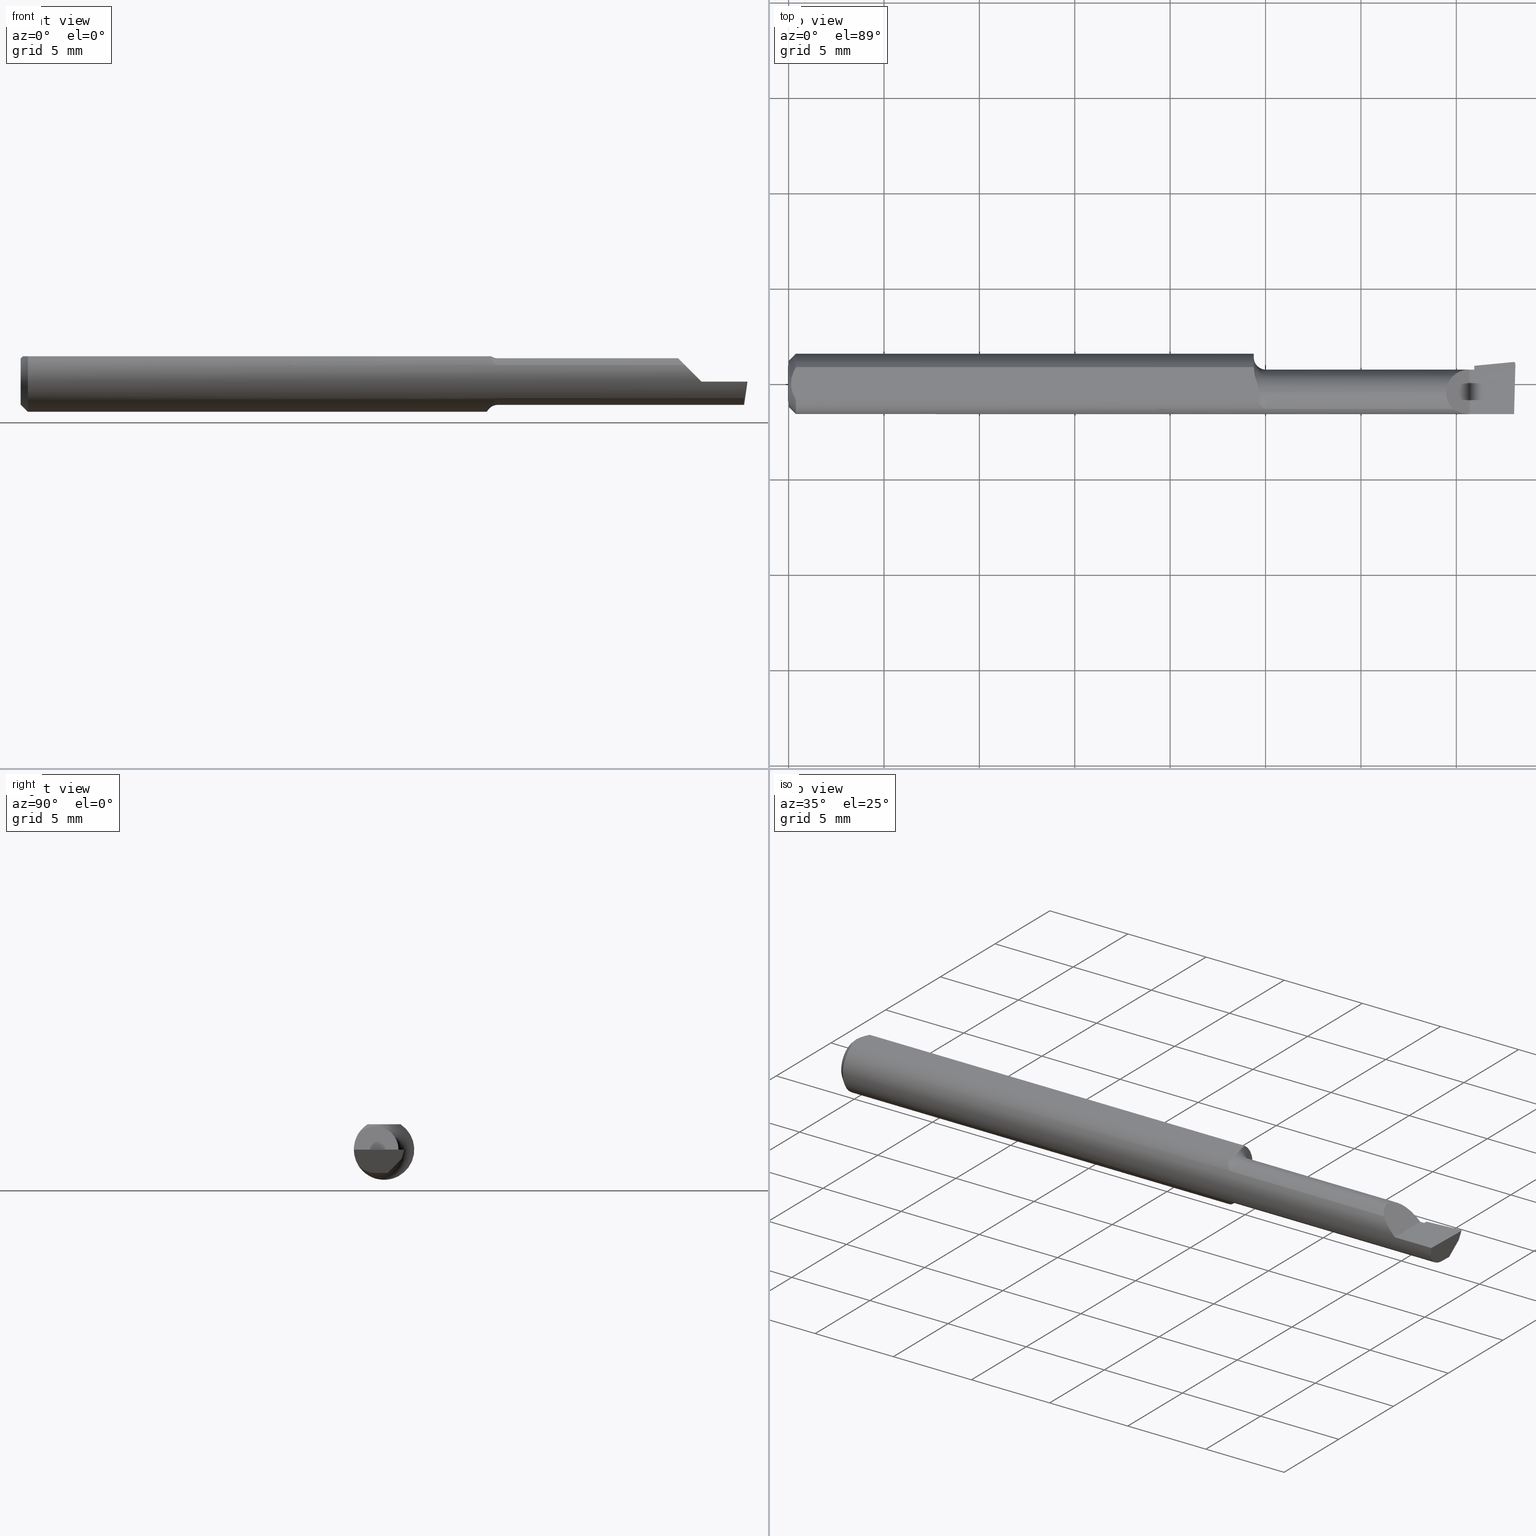
[diagram: canonical four-view strip — front | top / right | iso, engineering-drawing reading convention]
A machine part, canonical four-view strip (front | top / right | iso — engineering-drawing reading convention). The complete STEP part file that produces these views, byte-faithful:
ISO-10303-21;
HEADER;
FILE_DESCRIPTION (( 'STEP AP214' ),
    '1' );
FILE_NAME ('B110500R.STEP',
    '2020-05-08T22:34:10',
    ( '' ),
    ( '' ),
    'SwSTEP 2.0',
    'SolidWorks 2018',
    '' );
FILE_SCHEMA (( 'AUTOMOTIVE_DESIGN' ));
ENDSEC;

DATA;
#1 = ORIENTED_EDGE ( 'NONE', *, *, #317, .T. ) ;
#2 = VECTOR ( 'NONE', #396, 39.37007874015748143 ) ;
#3 = CARTESIAN_POINT ( 'NONE',  ( 1.405000000000000249, -0.2500000000000000555, 1.163414459189982046E-17 ) ) ;
#4 = SURFACE_SIDE_STYLE ('',( #459 ) ) ;
#5 = CARTESIAN_POINT ( 'NONE',  ( 0.9752324438157199404, -0.04692169178955603315, 0.04112849538229048502 ) ) ;
#6 = EDGE_CURVE ( 'NONE', #323, #486, #414, .T. ) ;
#7 = AXIS2_PLACEMENT_3D ( 'NONE', #649, #327, #337 ) ;
#8 = EDGE_LOOP ( 'NONE', ( #53, #427, #765, #190, #435, #141, #715, #268 ) ) ;
#9 = ORIENTED_EDGE ( 'NONE', *, *, #536, .F. ) ;
#10 = CARTESIAN_POINT ( 'NONE',  ( 0.9828708008506147342, -0.05210000000000012538, -0.03425072991922926968 ) ) ;
#11 = SURFACE_STYLE_USAGE ( .BOTH. , #4 ) ;
#12 =( LENGTH_UNIT ( ) NAMED_UNIT ( * ) SI_UNIT ( $, .METRE. ) );
#13 = CYLINDRICAL_SURFACE ( 'NONE', #408, 0.003999999999999999216 ) ;
#14 = CARTESIAN_POINT ( 'NONE',  ( 1.415000000000000036, -0.01839999999999999969, 0.0000000000000000000 ) ) ;
#15 = VERTEX_POINT ( 'NONE', #621 ) ;
#16 = CARTESIAN_POINT ( 'NONE',  ( 1.415000000000000036, 0.007456147106387241673, -0.04050015008383130860 ) ) ;
#17 = CARTESIAN_POINT ( 'NONE',  ( 1.415000000000000036, 0.03746543090320910568, 0.0000000000000000000 ) ) ;
#18 = APPLICATION_CONTEXT ( 'automotive_design' ) ;
#19 = CARTESIAN_POINT ( 'NONE',  ( 1.415000000000000036, -0.01839999999999999969, 0.0000000000000000000 ) ) ;
#20 = FACE_OUTER_BOUND ( 'NONE', #636, .T. ) ;
#21 = FILL_AREA_STYLE_COLOUR ( '', #313 ) ;
#22 = AXIS2_PLACEMENT_3D ( 'NONE', #572, #62, #577 ) ;
#23 = EDGE_CURVE ( 'NONE', #95, #145, #734, .T. ) ;
#24 = FACE_OUTER_BOUND ( 'NONE', #540, .T. ) ;
#25 = CARTESIAN_POINT ( 'NONE',  ( 2.249639673992775738E-32, 0.02964999999999996458, 1.836970198721025250E-16 ) ) ;
#26 = DIRECTION ( 'NONE',  ( 0.0000000000000000000, 0.0000000000000000000, 1.000000000000000000 ) ) ;
#27 = FILL_AREA_STYLE ('',( #21 ) ) ;
#28 = VERTEX_POINT ( 'NONE', #205 ) ;
#29 = APPLICATION_PROTOCOL_DEFINITION ( 'draft international standard', 'automotive_design', 1998, #18 ) ;
#30 = ORIENTED_EDGE ( 'NONE', *, *, #405, .F. ) ;
#31 = CARTESIAN_POINT ( 'NONE',  ( 1.415000000000000036, -0.01839999999999999969, -0.04804999999999998855 ) ) ;
#32 = CIRCLE ( 'NONE', #704, 0.04804999999999994692 ) ;
#33 = CARTESIAN_POINT ( 'NONE',  ( 1.496007920276503533, 0.04524764111161377889, -3.414809992080329023E-17 ) ) ;
#34 = AXIS2_PLACEMENT_3D ( 'NONE', #476, #168, #607 ) ;
#35 = CARTESIAN_POINT ( 'NONE',  ( 0.9850000000000000977, -0.01839999999999999275, -0.07304999999999996219 ) ) ;
#36 = CIRCLE ( 'NONE', #620, 0.04805000000000000243 ) ;
#37 = EDGE_CURVE ( 'NONE', #311, #744, #212, .T. ) ;
#38 = DIRECTION ( 'NONE',  ( -0.0000000000000000000, 1.000000000000000000, 1.224646799147353207E-16 ) ) ;
#39 = ORIENTED_EDGE ( 'NONE', *, *, #497, .F. ) ;
#40 = TOROIDAL_SURFACE ( 'NONE', #628, 0.07304999999999996219, 0.02500000000000000486 ) ;
#41 = DIRECTION ( 'NONE',  ( 0.0000000000000000000, -8.537024980200821325E-17, 1.000000000000000000 ) ) ;
#42 = CARTESIAN_POINT ( 'NONE',  ( 0.9697417421283762717, -0.03819491529868387220, 0.04955034320923033808 ) ) ;
#43 = ADVANCED_FACE ( 'NONE', ( #65 ), #136, .T. ) ;
#44 = DIRECTION ( 'NONE',  ( 1.000000000000000000, 0.0000000000000000000, 0.0000000000000000000 ) ) ;
#45 = CARTESIAN_POINT ( 'NONE',  ( 1.500000000000000222, -0.01839999999999999969, -0.04804999999999998855 ) ) ;
#46 = DIRECTION ( 'NONE',  ( 0.0000000000000000000, 0.0000000000000000000, -1.000000000000000000 ) ) ;
#47 = ORIENTED_EDGE ( 'NONE', *, *, #307, .F. ) ;
#48 =( BOUNDED_CURVE ( )  B_SPLINE_CURVE ( 3, ( #670, #602, #367, #394 ),
 .UNSPECIFIED., .F., .T. ) 
 B_SPLINE_CURVE_WITH_KNOTS ( ( 4, 4 ),
 ( 5.715941252449188603, 6.493234751459777243 ),
 .UNSPECIFIED. ) 
 CURVE ( )  GEOMETRIC_REPRESENTATION_ITEM ( )  RATIONAL_B_SPLINE_CURVE ( ( 1.000000000000000000, 0.9502818019828906948, 0.9502818019828906948, 1.000000000000000000 ) ) 
 REPRESENTATION_ITEM ( '' )  );
#49 = ADVANCED_FACE ( 'NONE', ( #156 ), #614, .F. ) ;
#50 = EDGE_CURVE ( 'NONE', #486, #735, #685, .T. ) ;
#51 = DIRECTION ( 'NONE',  ( 0.0000000000000000000, 0.0000000000000000000, -1.000000000000000000 ) ) ;
#52 = ORIENTED_EDGE ( 'NONE', *, *, #509, .F. ) ;
#53 = ORIENTED_EDGE ( 'NONE', *, *, #598, .T. ) ;
#54 = CIRCLE ( 'NONE', #584, 0.04805000000000000243 ) ;
#55 = CARTESIAN_POINT ( 'NONE',  ( 0.9709817975474823726, -0.01413225355780887635, 0.05235000000000000070 ) ) ;
#56 = LINE ( 'NONE', #176, #89 ) ;
#57 = FACE_OUTER_BOUND ( 'NONE', #445, .T. ) ;
#58 = CARTESIAN_POINT ( 'NONE',  ( 0.9696390223050100898, -0.02881514531779550206, 0.05234999999999998682 ) ) ;
#59 = ORIENTED_EDGE ( 'NONE', *, *, #164, .F. ) ;
#60 = FACE_OUTER_BOUND ( 'NONE', #545, .T. ) ;
#61 = DIRECTION ( 'NONE',  ( -1.000000000000000000, -0.0000000000000000000, -0.0000000000000000000 ) ) ;
#62 = DIRECTION ( 'NONE',  ( -1.000000000000000000, -0.0000000000000000000, -0.0000000000000000000 ) ) ;
#63 = DIRECTION ( 'NONE',  ( 1.000000000000000000, 0.0000000000000000000, 0.0000000000000000000 ) ) ;
#64 =( GEOMETRIC_REPRESENTATION_CONTEXT ( 3 ) GLOBAL_UNCERTAINTY_ASSIGNED_CONTEXT ( ( #144 ) ) GLOBAL_UNIT_ASSIGNED_CONTEXT ( ( #507, #135, #462 ) ) REPRESENTATION_CONTEXT ( 'NONE', 'WORKASPACE' ) );
#65 = FACE_OUTER_BOUND ( 'NONE', #347, .T. ) ;
#66 = LINE ( 'NONE', #766, #538 ) ;
#67 = EDGE_CURVE ( 'NONE', #72, #228, #284, .T. ) ;
#68 =( CONVERSION_BASED_UNIT ( 'INCH', #221 ) LENGTH_UNIT ( ) NAMED_UNIT ( #487 ) );
#69 = SURFACE_STYLE_FILL_AREA ( #385 ) ;
#70 = CARTESIAN_POINT ( 'NONE',  ( 0.01500000000000000465, 0.0000000000000000000, -0.06235000000000000264 ) ) ;
#71 = AXIS2_PLACEMENT_3D ( 'NONE', #239, #775, #351 ) ;
#72 = VERTEX_POINT ( 'NONE', #632 ) ;
#73 =( NAMED_UNIT ( * ) PLANE_ANGLE_UNIT ( ) SI_UNIT ( $, .RADIAN. ) );
#74 = ORIENTED_EDGE ( 'NONE', *, *, #725, .T. ) ;
#75 = ORIENTED_EDGE ( 'NONE', *, *, #769, .T. ) ;
#76 = ORIENTED_EDGE ( 'NONE', *, *, #421, .F. ) ;
#77 = DIRECTION ( 'NONE',  ( -1.000000000000000000, -0.0000000000000000000, -0.0000000000000000000 ) ) ;
#78 = CARTESIAN_POINT ( 'NONE',  ( 0.9639435274990673097, -0.01839999999999995459, -0.05957316929625284391 ) ) ;
#79 = DIRECTION ( 'NONE',  ( 0.0000000000000000000, 0.0000000000000000000, 1.000000000000000000 ) ) ;
#80 = ORIENTED_EDGE ( 'NONE', *, *, #563, .F. ) ;
#81 = CARTESIAN_POINT ( 'NONE',  ( 1.405000000000000249, 0.02964999999999991601, 1.163414459189982046E-17 ) ) ;
#82 = ORIENTED_EDGE ( 'NONE', *, *, #192, .F. ) ;
#83 = AXIS2_PLACEMENT_3D ( 'NONE', #308, #733, #376 ) ;
#84 = CARTESIAN_POINT ( 'NONE',  ( 1.199999999999999956, -0.05210000000000007681, 0.03425072991922935295 ) ) ;
#85 = LINE ( 'NONE', #84, #714 ) ;
#86 = CARTESIAN_POINT ( 'NONE',  ( 0.0000000000000000000, -0.03386738844375222768, 0.05234999999999997988 ) ) ;
#87 = EDGE_CURVE ( 'NONE', #525, #751, #246, .T. ) ;
#88 = ORIENTED_EDGE ( 'NONE', *, *, #521, .T. ) ;
#89 = VECTOR ( 'NONE', #241, 39.37007874015748854 ) ;
#90 = CARTESIAN_POINT ( 'NONE',  ( 1.497145952778605960, 0.03443421182165948974, -0.02084524377084990762 ) ) ;
#91 = DIRECTION ( 'NONE',  ( 0.0000000000000000000, 0.9524855432518776199, -0.3045837978228248533 ) ) ;
#92 = DIRECTION ( 'NONE',  ( 1.000000000000000000, 0.0000000000000000000, 0.0000000000000000000 ) ) ;
#93 = PRODUCT ( 'B110500R', 'B110500R', '', ( #557 ) ) ;
#94 = CARTESIAN_POINT ( 'NONE',  ( 1.485355811419347694, 0.01547504541840012161, -0.07997131547042393707 ) ) ;
#95 = VERTEX_POINT ( 'NONE', #760 ) ;
#96 = VERTEX_POINT ( 'NONE', #493 ) ;
#97 = FACE_OUTER_BOUND ( 'NONE', #488, .T. ) ;
#98 = EDGE_CURVE ( 'NONE', #279, #472, #290, .T. ) ;
#99 = AXIS2_PLACEMENT_3D ( 'NONE', #282, #273, #710 ) ;
#100 = DIRECTION ( 'NONE',  ( 0.0000000000000000000, 0.0000000000000000000, 1.000000000000000000 ) ) ;
#101 = VECTOR ( 'NONE', #215, 39.37007874015748143 ) ;
#102 = VERTEX_POINT ( 'NONE', #643 ) ;
#103 = DIRECTION ( 'NONE',  ( -0.1240019227989365425, -0.3022330132596648955, -0.9451342385281308323 ) ) ;
#104 = VECTOR ( 'NONE', #575, 39.37007874015748143 ) ;
#105 = VECTOR ( 'NONE', #537, 39.37007874015748143 ) ;
#106 = DIRECTION ( 'NONE',  ( -0.02617694830787654220, -0.9996573249755572599, 4.246274422243600449E-17 ) ) ;
#107 = EDGE_LOOP ( 'NONE', ( #471, #662, #603, #400, #587, #656, #82, #502 ) ) ;
#108 = ADVANCED_FACE ( 'NONE', ( #326 ), #40, .F. ) ;
#109 = EDGE_CURVE ( 'NONE', #404, #261, #54, .T. ) ;
#110 = CARTESIAN_POINT ( 'NONE',  ( 1.415000000000000036, 0.03394043341024433752, -0.01147666661066421880 ) ) ;
#111 = ORIENTED_EDGE ( 'NONE', *, *, #641, .T. ) ;
#112 = ORIENTED_EDGE ( 'NONE', *, *, #210, .T. ) ;
#113 = ORIENTED_EDGE ( 'NONE', *, *, #332, .T. ) ;
#114 =( BOUNDED_CURVE ( )  B_SPLINE_CURVE ( 3, ( #247, #674, #547, #120 ),
 .UNSPECIFIED., .F., .T. ) 
 B_SPLINE_CURVE_WITH_KNOTS ( ( 4, 4 ),
 ( 0.0000000000000000000, 1.570796326794896558 ),
 .UNSPECIFIED. ) 
 CURVE ( )  GEOMETRIC_REPRESENTATION_ITEM ( )  RATIONAL_B_SPLINE_CURVE ( ( 1.000000000000000000, 0.8047378541243649375, 0.8047378541243649375, 1.000000000000000000 ) ) 
 REPRESENTATION_ITEM ( '' )  );
#115 = CARTESIAN_POINT ( 'NONE',  ( 1.361790413321597892, -0.04299473640227075705, 0.04320958667840187062 ) ) ;
#116 = CARTESIAN_POINT ( 'NONE',  ( 1.405000000000000249, -0.06235000000000005121, 1.163414459189982046E-17 ) ) ;
#117 = ADVANCED_FACE ( 'NONE', ( #24 ), #667, .T. ) ;
#118 = CARTESIAN_POINT ( 'NONE',  ( 1.380994055934046782, -0.05883495956508443675, 0.02400594406595336905 ) ) ;
#119 = PRESENTATION_STYLE_ASSIGNMENT (( #630 ) ) ;
#120 = CARTESIAN_POINT ( 'NONE',  ( 1.405000000000000249, 0.02964999999999991601, 1.163414459189982046E-17 ) ) ;
#121 = EDGE_LOOP ( 'NONE', ( #161, #334, #616, #595, #551, #637 ) ) ;
#122 = CARTESIAN_POINT ( 'NONE',  ( 0.9684726880402972915, -0.003926822060867410022, 0.05235000000000000070 ) ) ;
#123 = VERTEX_POINT ( 'NONE', #749 ) ;
#124 = DIRECTION ( 'NONE',  ( 1.000000000000000000, 0.0000000000000000000, 0.0000000000000000000 ) ) ;
#125 = CARTESIAN_POINT ( 'NONE',  ( 0.9709817975471366491, -0.01840000000000274055, 0.05235000000000000070 ) ) ;
#126 = AXIS2_PLACEMENT_3D ( 'NONE', #297, #668, #236 ) ;
#127 = EDGE_CURVE ( 'NONE', #720, #626, #568, .T. ) ;
#128 = DIRECTION ( 'NONE',  ( 0.0000000000000000000, 0.0000000000000000000, 1.000000000000000000 ) ) ;
#129 = DIRECTION ( 'NONE',  ( -1.000000000000000000, -0.0000000000000000000, -0.0000000000000000000 ) ) ;
#130 = LENGTH_MEASURE_WITH_UNIT ( LENGTH_MEASURE( 0.02539999999999999897 ), #257 );
#131 = CARTESIAN_POINT ( 'NONE',  ( 0.9602082692914427620, 0.01460127996857734853, -0.06118787137580497526 ) ) ;
#132 = ORIENTED_EDGE ( 'NONE', *, *, #87, .T. ) ;
#133 = CARTESIAN_POINT ( 'NONE',  ( 1.499880855614020625, 0.04110005946548990485, 2.844601328296318996E-20 ) ) ;
#134 = EDGE_CURVE ( 'NONE', #735, #151, #66, .T. ) ;
#135 =( NAMED_UNIT ( * ) PLANE_ANGLE_UNIT ( ) SI_UNIT ( $, .RADIAN. ) );
#136 = PLANE ( 'NONE',  #336 ) ;
#137 = AXIS2_PLACEMENT_3D ( 'NONE', #481, #657, #660 ) ;
#138 = CYLINDRICAL_SURFACE ( 'NONE', #126, 0.04804999999999997468 ) ;
#139 =( LENGTH_UNIT ( ) NAMED_UNIT ( * ) SI_UNIT ( $, .METRE. ) );
#140 = VERTEX_POINT ( 'NONE', #701 ) ;
#141 = ORIENTED_EDGE ( 'NONE', *, *, #641, .F. ) ;
#142 = CARTESIAN_POINT ( 'NONE',  ( 0.9599999999999999645, 0.02282614954852000763, -0.05862499217990970596 ) ) ;
#143 = CARTESIAN_POINT ( 'NONE',  ( 1.415000000000000036, 0.01335851473338077466, -0.03441620828959359585 ) ) ;
#144 = UNCERTAINTY_MEASURE_WITH_UNIT (LENGTH_MEASURE( 1.000000000000000082E-05 ), #507, 'distance_accuracy_value', 'NONE');
#145 = VERTEX_POINT ( 'NONE', #694 ) ;
#146 = CARTESIAN_POINT ( 'NONE',  ( 0.01216137397042176341, -0.02864146636719542074, 0.05235000000000000070 ) ) ;
#147 = DIRECTION ( 'NONE',  ( -0.06894566448119623936, 0.7160281025913035613, -0.6946583704589934793 ) ) ;
#148 = CARTESIAN_POINT ( 'NONE',  ( 1.493880948194812541, 0.04095478369585271033, -0.01336835189448957323 ) ) ;
#149 = ORIENTED_EDGE ( 'NONE', *, *, #480, .T. ) ;
#150 = AXIS2_PLACEMENT_3D ( 'NONE', #503, #196, #128 ) ;
#151 = VERTEX_POINT ( 'NONE', #416 ) ;
#152 = EDGE_CURVE ( 'NONE', #397, #454, #32, .T. ) ;
#153 = CARTESIAN_POINT ( 'NONE',  ( 1.199999999999999956, -0.05210000000000007681, -0.03425072991922935295 ) ) ;
#154 = AXIS2_PLACEMENT_3D ( 'NONE', #35, #38, #41 ) ;
#155 = CARTESIAN_POINT ( 'NONE',  ( 2.249639673992775738E-32, -0.06234999999999999570, 1.836970198721025250E-16 ) ) ;
#156 = FACE_OUTER_BOUND ( 'NONE', #532, .T. ) ;
#157 = CARTESIAN_POINT ( 'NONE',  ( 1.496007920276503533, 0.04524764111161377889, -3.414809992080329023E-17 ) ) ;
#158 = VECTOR ( 'NONE', #412, 39.37007874015748143 ) ;
#159 = VERTEX_POINT ( 'NONE', #33 ) ;
#160 = ORIENTED_EDGE ( 'NONE', *, *, #270, .T. ) ;
#161 = ORIENTED_EDGE ( 'NONE', *, *, #235, .F. ) ;
#162 = CARTESIAN_POINT ( 'NONE',  ( 1.495883579913034112, 0.04524764111161379276, -1.707839814407301456E-17 ) ) ;
#163 = PLANE ( 'NONE',  #524 ) ;
#164 = EDGE_CURVE ( 'NONE', #423, #220, #599, .T. ) ;
#165 = ORIENTED_EDGE ( 'NONE', *, *, #421, .T. ) ;
#166 = LINE ( 'NONE', #505, #2 ) ;
#167 = CARTESIAN_POINT ( 'NONE',  ( 1.490100436386402993, -0.04484455226154462903, -0.06130493938609104382 ) ) ;
#168 = DIRECTION ( 'NONE',  ( -1.000000000000000000, -0.0000000000000000000, -0.0000000000000000000 ) ) ;
#169 = CYLINDRICAL_SURFACE ( 'NONE', #350, 0.003999999999999999216 ) ;
#170 = ADVANCED_FACE ( 'NONE', ( #181 ), #763, .F. ) ;
#171 = CARTESIAN_POINT ( 'NONE',  ( 1.495759144559524190, 0.04524165206609318673, -1.706315920833534573E-17 ) ) ;
#172 = CARTESIAN_POINT ( 'NONE',  ( 1.415000000000000036, -0.01839999999999999969, -0.04804999999999998855 ) ) ;
#173 = CARTESIAN_POINT ( 'NONE',  ( 0.9613962500143420353, -0.002002297547419323084, -0.06287403108402092600 ) ) ;
#174 = EDGE_CURVE ( 'NONE', #468, #472, #213, .T. ) ;
#175 = CARTESIAN_POINT ( 'NONE',  ( 0.004999999999989946514, 7.898418262501303575E-16, 0.05235000000000000070 ) ) ;
#176 = CARTESIAN_POINT ( 'NONE',  ( 1.485355811419347694, 0.01928498759140763116, -0.08118965066171524025 ) ) ;
#177 = VERTEX_POINT ( 'NONE', #514 ) ;
#178 = CIRCLE ( 'NONE', #99, 0.04804999999999994692 ) ;
#179 = PLANE ( 'NONE',  #711 ) ;
#180 = CARTESIAN_POINT ( 'NONE',  ( 0.9664444859557655976, 0.002321921504987204624, 0.05235000000000000070 ) ) ;
#181 = FACE_OUTER_BOUND ( 'NONE', #610, .T. ) ;
#182 = FACE_OUTER_BOUND ( 'NONE', #216, .T. ) ;
#183 = CARTESIAN_POINT ( 'NONE',  ( 0.9623860608652277104, -0.01052139226165770339, -0.06200658662318050268 ) ) ;
#184 = CARTESIAN_POINT ( 'NONE',  ( 0.01500000000000000465, 0.0000000000000000000, 0.0000000000000000000 ) ) ;
#185 = TOROIDAL_SURFACE ( 'NONE', #22, 0.07304999999999996219, 0.02500000000000000486 ) ;
#186 = DIRECTION ( 'NONE',  ( 1.000000000000000000, 0.0000000000000000000, 0.0000000000000000000 ) ) ;
#187 = DIRECTION ( 'NONE',  ( -0.1240019227989365425, -0.3022330132596648955, -0.9451342385281308323 ) ) ;
#188 = AXIS2_PLACEMENT_3D ( 'NONE', #198, #652, #202 ) ;
#189 = DIRECTION ( 'NONE',  ( 0.0000000000000000000, 0.0000000000000000000, -1.000000000000000000 ) ) ;
#190 = ORIENTED_EDGE ( 'NONE', *, *, #37, .F. ) ;
#191 = CIRCLE ( 'NONE', #377, 0.04804999999999997468 ) ;
#192 = EDGE_CURVE ( 'NONE', #145, #404, #328, .T. ) ;
#193 = CARTESIAN_POINT ( 'NONE',  ( 1.510364203804933414, 0.04234793331252795917, -0.01399999999999999856 ) ) ;
#194 = AXIS2_PLACEMENT_3D ( 'NONE', #331, #357, #285 ) ;
#195 = ORIENTED_EDGE ( 'NONE', *, *, #622, .T. ) ;
#196 = DIRECTION ( 'NONE',  ( -1.000000000000000000, -0.0000000000000000000, -0.0000000000000000000 ) ) ;
#197 = CIRCLE ( 'NONE', #759, 0.04734999999999964237 ) ;
#198 = CARTESIAN_POINT ( 'NONE',  ( 0.0000000000000000000, -0.01839999999999999969, 0.0000000000000000000 ) ) ;
#199 = LINE ( 'NONE', #591, #373 ) ;
#200 = CARTESIAN_POINT ( 'NONE',  ( 1.405000000000000249, -0.2500000000000000555, 1.163414459189982046E-17 ) ) ;
#201 = CONICAL_SURFACE ( 'NONE', #289, 0.06235000000000000264, 0.7853981633974601584 ) ;
#202 = DIRECTION ( 'NONE',  ( 0.0000000000000000000, 0.0000000000000000000, 1.000000000000000000 ) ) ;
#203 = FILL_AREA_STYLE_COLOUR ( '', #511 ) ;
#204 = CARTESIAN_POINT ( 'NONE',  ( 0.9709817975471366491, -0.01840000000000274055, 0.05235000000000000070 ) ) ;
#205 = CARTESIAN_POINT ( 'NONE',  ( 1.415000000000000036, 0.0001316211261978388330, -0.04804999999999998855 ) ) ;
#206 = CONICAL_SURFACE ( 'NONE', #578, 0.06235000000000000264, 0.7853981633974601584 ) ;
#207 = DIRECTION ( 'NONE',  ( 0.1053106618241843595, 0.6976485211320170299, 0.7086580314005209713 ) ) ;
#208 = DIRECTION ( 'NONE',  ( -1.000000000000000000, -0.0000000000000000000, -0.0000000000000000000 ) ) ;
#209 = B_SPLINE_CURVE_WITH_KNOTS ( 'NONE', 3,
 ( #617, #730, #675, #249, #180, #548, #122, #489, #55, #434 ),
 .UNSPECIFIED., .F., .F.,
 ( 4, 2, 2, 2, 4 ),
 ( 0.008710904206567280858, 0.009350419755586234644, 0.009510298642840973524, 0.009670177530095712404, 0.009989935304605188429 ),
 .UNSPECIFIED. ) ;
#210 = EDGE_CURVE ( 'NONE', #220, #177, #199, .T. ) ;
#211 = DIRECTION ( 'NONE',  ( -1.000000000000000000, -0.0000000000000000000, -0.0000000000000000000 ) ) ;
#212 = LINE ( 'NONE', #248, #104 ) ;
#213 = LINE ( 'NONE', #531, #105 ) ;
#214 = CARTESIAN_POINT ( 'NONE',  ( 0.01500000000000000465, 0.03386738844375223462, 0.05234999999999997988 ) ) ;
#215 = DIRECTION ( 'NONE',  ( -0.1240019227989365563, -0.3022330132596649510, -0.9451342385281308323 ) ) ;
#216 = EDGE_LOOP ( 'NONE', ( #518, #527 ) ) ;
#217 = DIRECTION ( 'NONE',  ( 0.0000000000000000000, 0.0000000000000000000, -1.000000000000000000 ) ) ;
#218 = CARTESIAN_POINT ( 'NONE',  ( 1.492426164563412261, -0.01820167213927955524, -0.04804999999999998855 ) ) ;
#219 = VERTEX_POINT ( 'NONE', #658 ) ;
#220 = VERTEX_POINT ( 'NONE', #717 ) ;
#221 = LENGTH_MEASURE_WITH_UNIT ( LENGTH_MEASURE( 0.02539999999999999897 ), #12 );
#222 = DIRECTION ( 'NONE',  ( -1.000000000000000000, -0.0000000000000000000, -0.0000000000000000000 ) ) ;
#223 = EDGE_CURVE ( 'NONE', #219, #28, #530, .T. ) ;
#224 = CARTESIAN_POINT ( 'NONE',  ( 0.009678036133109314473, -0.02325481837211496733, 0.05235000000000000070 ) ) ;
#225 = CARTESIAN_POINT ( 'NONE',  ( 0.006057557792978150897, -0.01187252718384441963, 0.05234999999999998682 ) ) ;
#226 = VECTOR ( 'NONE', #255, 39.37007874015748854 ) ;
#227 = CARTESIAN_POINT ( 'NONE',  ( 0.004999999999998894218, -0.005957634400466962389, 0.05235000000000000070 ) ) ;
#228 = VERTEX_POINT ( 'NONE', #770 ) ;
#229 = UNCERTAINTY_MEASURE_WITH_UNIT (LENGTH_MEASURE( 1.000000000000000082E-05 ), #501, 'distance_accuracy_value', 'NONE');
#230 = CIRCLE ( 'NONE', #661, 0.06235000000000000264 ) ;
#231 = CARTESIAN_POINT ( 'NONE',  ( 0.9850000000000000977, -0.01839999999999999969, 0.0000000000000000000 ) ) ;
#232 = CARTESIAN_POINT ( 'NONE',  ( 0.01500000000000185039, -0.03386738844380016850, 0.05235000000000000070 ) ) ;
#233 = STYLED_ITEM ( 'NONE', ( #407 ), #508 ) ;
#234 = ORIENTED_EDGE ( 'NONE', *, *, #67, .F. ) ;
#235 = EDGE_CURVE ( 'NONE', #323, #397, #506, .T. ) ;
#236 = DIRECTION ( 'NONE',  ( 0.0000000000000000000, 0.0000000000000000000, 1.000000000000000000 ) ) ;
#237 = ADVANCED_FACE ( 'NONE', ( #182 ), #403, .F. ) ;
#238 = ORIENTED_EDGE ( 'NONE', *, *, #109, .F. ) ;
#239 = CARTESIAN_POINT ( 'NONE',  ( 0.0000000000000000000, 0.0000000000000000000, 0.0000000000000000000 ) ) ;
#240 = VERTEX_POINT ( 'NONE', #528 ) ;
#241 = DIRECTION ( 'NONE',  ( -0.1240019227989365563, -0.3022330132596648955, -0.9451342385281308323 ) ) ;
#242 = EDGE_LOOP ( 'NONE', ( #358, #646, #654, #560, #549, #386, #361 ) ) ;
#243 = ADVANCED_FACE ( 'NONE', ( #677 ), #13, .T. ) ;
#244 = CARTESIAN_POINT ( 'NONE',  ( 1.495634880358090335, 0.04522968678441208201, 5.345729797359908772E-19 ) ) ;
#245 = CARTESIAN_POINT ( 'NONE',  ( 1.392739685260043325, -0.06235000000000000264, 0.01226031473995679161 ) ) ;
#246 = LINE ( 'NONE', #3, #283 ) ;
#247 = CARTESIAN_POINT ( 'NONE',  ( 1.356949999999999878, -0.01839999999999999969, 0.04804999999999997468 ) ) ;
#248 = CARTESIAN_POINT ( 'NONE',  ( 0.8348153170171558335, -0.01839999999999999969, 8.146162928567849885E-17 ) ) ;
#249 = CARTESIAN_POINT ( 'NONE',  ( 0.9657332775895889343, 0.004426912553965690889, 0.05234999999999998682 ) ) ;
#250 = DIRECTION ( 'NONE',  ( 0.0000000000000000000, -0.6963153109074925462, -0.7177360153954948085 ) ) ;
#251 = ORIENTED_EDGE ( 'NONE', *, *, #554, .T. ) ;
#252 = CYLINDRICAL_SURFACE ( 'NONE', #699, 0.06235000000000000264 ) ;
#253 = DIRECTION ( 'NONE',  ( -0.0000000000000000000, 0.0000000000000000000, 1.000000000000000000 ) ) ;
#254 = VECTOR ( 'NONE', #250, 39.37007874015748854 ) ;
#255 = DIRECTION ( 'NONE',  ( 0.1240019227989365286, 0.3022330132596649510, 0.9451342385281308323 ) ) ;
#256 = ORIENTED_EDGE ( 'NONE', *, *, #332, .F. ) ;
#257 =( LENGTH_UNIT ( ) NAMED_UNIT ( * ) SI_UNIT ( $, .METRE. ) );
#258 = ORIENTED_EDGE ( 'NONE', *, *, #497, .T. ) ;
#259 = DIRECTION ( 'NONE',  ( -1.000000000000000000, 0.0000000000000000000, -0.0000000000000000000 ) ) ;
#260 = EDGE_LOOP ( 'NONE', ( #256, #581, #132, #426 ) ) ;
#261 = VERTEX_POINT ( 'NONE', #31 ) ;
#262 = CARTESIAN_POINT ( 'NONE',  ( 0.9768557543361661155, -0.04856891343705597303, -0.03913748562448250701 ) ) ;
#263 = CARTESIAN_POINT ( 'NONE',  ( 0.9600000000000001865, 0.05464999999999995556, 0.0000000000000000000 ) ) ;
#264 = EDGE_CURVE ( 'NONE', #744, #720, #492, .T. ) ;
#265 = CARTESIAN_POINT ( 'NONE',  ( 0.9736313994831701235, -0.04510599191766692662, -0.04319271381807381766 ) ) ;
#266 = CARTESIAN_POINT ( 'NONE',  ( 1.494315395341277553, -0.05883495956508440899, -0.02400594406595344885 ) ) ;
#267 = CARTESIAN_POINT ( 'NONE',  ( 0.9719606783407127581, -0.04239780856895213057, -0.04588180363204267392 ) ) ;
#268 = ORIENTED_EDGE ( 'NONE', *, *, #278, .F. ) ;
#269 = ORIENTED_EDGE ( 'NONE', *, *, #379, .F. ) ;
#270 = EDGE_CURVE ( 'NONE', #781, #177, #463, .T. ) ;
#271 = CARTESIAN_POINT ( 'NONE',  ( 1.415000000000000036, 0.01335851473338077466, -0.03441620828959359585 ) ) ;
#272 = CARTESIAN_POINT ( 'NONE',  ( 0.9810018602471947124, -0.05138041438525052518, -0.03535223831097217967 ) ) ;
#273 = DIRECTION ( 'NONE',  ( -1.000000000000000000, -0.0000000000000000000, -0.0000000000000000000 ) ) ;
#274 = CARTESIAN_POINT ( 'NONE',  ( 0.9780636144450135516, -0.04963912592730903434, -0.03775824298307036558 ) ) ;
#275 = PRESENTATION_LAYER_ASSIGNMENT (  '', '', ( #233 ) ) ;
#276 = ORIENTED_EDGE ( 'NONE', *, *, #317, .F. ) ;
#277 = CARTESIAN_POINT ( 'NONE',  ( 1.494167560590871746, 0.04076208604347207609, -0.01402709660331437347 ) ) ;
#278 = EDGE_CURVE ( 'NONE', #228, #525, #293, .T. ) ;
#279 = VERTEX_POINT ( 'NONE', #204 ) ;
#280 = LENGTH_MEASURE_WITH_UNIT ( LENGTH_MEASURE( 0.02539999999999999897 ), #139 );
#281 = CARTESIAN_POINT ( 'NONE',  ( 1.415000000000000036, -0.2500000000000000555, 1.040949779275248537E-17 ) ) ;
#282 = CARTESIAN_POINT ( 'NONE',  ( 0.9850000000000000977, -0.01839999999999999969, 0.0000000000000000000 ) ) ;
#283 = VECTOR ( 'NONE', #556, 39.37007874015748143 ) ;
#284 =( BOUNDED_CURVE ( )  B_SPLINE_CURVE ( 3, ( #688, #266, #559, #639 ),
 .UNSPECIFIED., .F., .F. ) 
 B_SPLINE_CURVE_WITH_KNOTS ( ( 4, 4 ),
 ( 0.7791845851203680340, 1.360746882514706213 ),
 .UNSPECIFIED. ) 
 CURVE ( )  GEOMETRIC_REPRESENTATION_ITEM ( )  RATIONAL_B_SPLINE_CURVE ( ( 1.000000000000000000, 0.9720134746468966913, 0.9720134746468966913, 1.000000000000000000 ) ) 
 REPRESENTATION_ITEM ( '' )  );
#285 = DIRECTION ( 'NONE',  ( 0.0000000000000000000, -1.000000000000000000, 4.268512490100411895E-17 ) ) ;
#286 = VECTOR ( 'NONE', #700, 39.37007874015748854 ) ;
#287 = EDGE_LOOP ( 'NONE', ( #474, #780, #705, #718 ) ) ;
#288 = ORIENTED_EDGE ( 'NONE', *, *, #509, .T. ) ;
#289 = AXIS2_PLACEMENT_3D ( 'NONE', #512, #453, #450 ) ;
#290 = CIRCLE ( 'NONE', #458, 0.02500000000000000486 ) ;
#291 = EDGE_CURVE ( 'NONE', #159, #744, #708, .T. ) ;
#292 = DIRECTION ( 'NONE',  ( -1.000000000000000000, -0.0000000000000000000, -0.0000000000000000000 ) ) ;
#293 = LINE ( 'NONE', #155, #356 ) ;
#294 = ORIENTED_EDGE ( 'NONE', *, *, #152, .F. ) ;
#295 = CYLINDRICAL_SURFACE ( 'NONE', #188, 0.04804999999999997468 ) ;
#296 = ADVANCED_FACE ( 'NONE', ( #384 ), #163, .F. ) ;
#297 = CARTESIAN_POINT ( 'NONE',  ( 0.0000000000000000000, -0.01839999999999999969, 0.0000000000000000000 ) ) ;
#298 = CARTESIAN_POINT ( 'NONE',  ( 1.356949999999999878, -0.01839999999999999969, 0.04804999999999997468 ) ) ;
#299 = ADVANCED_FACE ( 'NONE', ( #483 ), #653, .F. ) ;
#300 = DIMENSIONAL_EXPONENTS ( 1.000000000000000000, 0.0000000000000000000, 0.0000000000000000000, 0.0000000000000000000, 0.0000000000000000000, 0.0000000000000000000, 0.0000000000000000000 ) ;
#301 = DIRECTION ( 'NONE',  ( -1.224646799147350495E-16, 0.0000000000000000000, -1.000000000000000000 ) ) ;
#302 = CIRCLE ( 'NONE', #676, 0.07304999999999996219 ) ;
#303 = ORIENTED_EDGE ( 'NONE', *, *, #405, .T. ) ;
#304 = DIRECTION ( 'NONE',  ( -0.9953961983671800740, -0.09584575252021031166, 0.0000000000000000000 ) ) ;
#305 = ORIENTED_EDGE ( 'NONE', *, *, #748, .F. ) ;
#306 = CARTESIAN_POINT ( 'NONE',  ( 1.510364203804933414, 0.04234793331252795917, -0.01399999999999999856 ) ) ;
#307 = EDGE_CURVE ( 'NONE', #472, #397, #316, .T. ) ;
#308 = CARTESIAN_POINT ( 'NONE',  ( 0.01500000000000000465, 0.0000000000000000000, 0.0000000000000000000 ) ) ;
#309 = CARTESIAN_POINT ( 'NONE',  ( 1.493798075755721211, 0.04075279661035100670, -0.01399999999999999856 ) ) ;
#310 = DIRECTION ( 'NONE',  ( 0.0000000000000000000, 1.000000000000000000, 0.0000000000000000000 ) ) ;
#311 = VERTEX_POINT ( 'NONE', #461 ) ;
#312 = CARTESIAN_POINT ( 'NONE',  ( 0.01500000000000185039, -0.03386738844380016850, 0.05235000000000000070 ) ) ;
#313 = COLOUR_RGB ( '',0.7529411764705882248, 0.7529411764705882248, 0.7529411764705882248 ) ;
#314 =( NAMED_UNIT ( * ) SI_UNIT ( $, .STERADIAN. ) SOLID_ANGLE_UNIT ( ) );
#315 = MECHANICAL_DESIGN_GEOMETRIC_PRESENTATION_REPRESENTATION (  '', ( #233 ), #360 ) ;
#316 = CIRCLE ( 'NONE', #567, 0.04804999999999994692 ) ;
#317 = EDGE_CURVE ( 'NONE', #311, #95, #683, .T. ) ;
#318 = CARTESIAN_POINT ( 'NONE',  ( 0.0000000000000000000, -0.01839999999999999275, -0.04804999999999997468 ) ) ;
#319 = AXIS2_PLACEMENT_3D ( 'NONE', #767, #44, #51 ) ;
#320 = VECTOR ( 'NONE', #208, 39.37007874015748143 ) ;
#321 = FACE_OUTER_BOUND ( 'NONE', #242, .T. ) ;
#322 = ORIENTED_EDGE ( 'NONE', *, *, #784, .T. ) ;
#323 = VERTEX_POINT ( 'NONE', #363 ) ;
#324 = CARTESIAN_POINT ( 'NONE',  ( 0.9690023436943706603, -0.03635371779854203872, -0.05080473676934862959 ) ) ;
#325 = CARTESIAN_POINT ( 'NONE',  ( 0.9677747305127012423, -0.03308328010062950436, -0.05299899880320899787 ) ) ;
#326 = FACE_OUTER_BOUND ( 'NONE', #287, .T. ) ;
#327 = DIRECTION ( 'NONE',  ( -1.000000000000000000, 0.0000000000000000000, -0.0000000000000000000 ) ) ;
#328 = LINE ( 'NONE', #520, #353 ) ;
#329 = AXIS2_PLACEMENT_3D ( 'NONE', #193, #147, #579 ) ;
#330 = DIRECTION ( 'NONE',  ( 0.0000000000000000000, 0.0000000000000000000, 1.000000000000000000 ) ) ;
#331 = CARTESIAN_POINT ( 'NONE',  ( 1.500000000000000222, -0.01839999999999999969, -0.04804999999999998855 ) ) ;
#332 = EDGE_CURVE ( 'NONE', #96, #468, #433, .T. ) ;
#333 = CARTESIAN_POINT ( 'NONE',  ( 0.9656294582975117891, -0.02606820000987080180, -0.05677892429946721636 ) ) ;
#334 = ORIENTED_EDGE ( 'NONE', *, *, #6, .T. ) ;
#335 = VECTOR ( 'NONE', #383, 39.37007874015748854 ) ;
#336 = AXIS2_PLACEMENT_3D ( 'NONE', #263, #124, #46 ) ;
#337 = DIRECTION ( 'NONE',  ( -0.0000000000000000000, 0.0000000000000000000, 1.000000000000000000 ) ) ;
#338 = CARTESIAN_POINT ( 'NONE',  ( 0.9836283801985743480, -0.05210000000115980190, 0.03425072991746576367 ) ) ;
#339 = CARTESIAN_POINT ( 'NONE',  ( 1.500053207916539399, 0.04152013807843993320, 0.001313657550809440569 ) ) ;
#340 = ORIENTED_EDGE ( 'NONE', *, *, #393, .F. ) ;
#341 = APPLICATION_CONTEXT ( 'automotive_design' ) ;
#342 = DIRECTION ( 'NONE',  ( 0.0000000000000000000, 0.0000000000000000000, 1.000000000000000000 ) ) ;
#343 = B_SPLINE_CURVE_WITH_KNOTS ( 'NONE', 3,
 ( #539, #42, #380, #5, #625, #753, #402, #703, #338, #648 ),
 .UNSPECIFIED., .F., .F.,
 ( 4, 2, 2, 2, 4 ),
 ( 3.799952872692126052E-07, 0.0004056523638566300453, 0.0006082885481413102422, 0.0007096066402836536747, 0.0008109247324259971071 ),
 .UNSPECIFIED. ) ;
#344 =( BOUNDED_CURVE ( )  B_SPLINE_CURVE ( 3, ( #277, #515, #457, #90 ),
 .UNSPECIFIED., .F., .T. ) 
 B_SPLINE_CURVE_WITH_KNOTS ( ( 4, 4 ),
 ( 3.156599629463130885, 4.715023529952365067 ),
 .UNSPECIFIED. ) 
 CURVE ( )  GEOMETRIC_REPRESENTATION_ITEM ( )  RATIONAL_B_SPLINE_CURVE ( ( 1.000000000000000000, 0.8076450242550465841, 0.8076450242550465841, 1.000000000000000000 ) ) 
 REPRESENTATION_ITEM ( '' )  );
#345 = DIRECTION ( 'NONE',  ( -0.9953961983671800740, -0.09584575252021028391, 2.116984158397001727E-18 ) ) ;
#346 = CARTESIAN_POINT ( 'NONE',  ( 0.9647104858884212319, -0.02227973916747848573, -0.05837485801745211783 ) ) ;
#347 = EDGE_LOOP ( 'NONE', ( #707, #442, #88 ) ) ;
#348 = SHAPE_DEFINITION_REPRESENTATION ( #456, #508 ) ;
#349 = CARTESIAN_POINT ( 'NONE',  ( 0.9639435274990673097, -0.01839999999999995459, -0.05957316929625284391 ) ) ;
#350 = AXIS2_PLACEMENT_3D ( 'NONE', #737, #187, #441 ) ;
#351 = DIRECTION ( 'NONE',  ( 0.0000000000000000000, 0.0000000000000000000, 1.000000000000000000 ) ) ;
#352 = DIRECTION ( 'NONE',  ( -1.000000000000000000, -0.0000000000000000000, -0.0000000000000000000 ) ) ;
#353 = VECTOR ( 'NONE', #645, 39.37007874015748854 ) ;
#354 = EDGE_CURVE ( 'NONE', #219, #102, #777, .T. ) ;
#355 = PLANE ( 'NONE',  #137 ) ;
#356 = VECTOR ( 'NONE', #222, 39.37007874015748143 ) ;
#357 = DIRECTION ( 'NONE',  ( 2.429359850419095176E-34, 4.268512490100411895E-17, 1.000000000000000000 ) ) ;
#358 = ORIENTED_EDGE ( 'NONE', *, *, #446, .F. ) ;
#359 = ADVANCED_FACE ( 'NONE', ( #650 ), #517, .T. ) ;
#360 =( GEOMETRIC_REPRESENTATION_CONTEXT ( 3 ) GLOBAL_UNCERTAINTY_ASSIGNED_CONTEXT ( ( #600 ) ) GLOBAL_UNIT_ASSIGNED_CONTEXT ( ( #68, #73, #618 ) ) REPRESENTATION_CONTEXT ( 'NONE', 'WORKASPACE' ) );
#361 = ORIENTED_EDGE ( 'NONE', *, *, #439, .F. ) ;
#362 = EDGE_CURVE ( 'NONE', #220, #423, #197, .T. ) ;
#363 = CARTESIAN_POINT ( 'NONE',  ( 0.9639435274990673097, -0.01839999999999995459, -0.05957316929625284391 ) ) ;
#364 = DIRECTION ( 'NONE',  ( -1.000000000000000000, -0.0000000000000000000, -0.0000000000000000000 ) ) ;
#365 = ADVANCED_FACE ( 'NONE', ( #321 ), #355, .F. ) ;
#366 = ORIENTED_EDGE ( 'NONE', *, *, #109, .T. ) ;
#367 = CARTESIAN_POINT ( 'NONE',  ( 1.492086480543131755, -0.03117368152160948994, -0.04804999999999997468 ) ) ;
#368 = LINE ( 'NONE', #86, #320 ) ;
#369 = DIMENSIONAL_EXPONENTS ( 1.000000000000000000, 0.0000000000000000000, 0.0000000000000000000, 0.0000000000000000000, 0.0000000000000000000, 0.0000000000000000000, 0.0000000000000000000 ) ;
#370 = ORIENTED_EDGE ( 'NONE', *, *, #716, .F. ) ;
#371 = CARTESIAN_POINT ( 'NONE',  ( 1.500000000000000222, -0.2500000000000000555, 0.0000000000000000000 ) ) ;
#372 = CARTESIAN_POINT ( 'NONE',  ( 1.356949999999999878, -0.01839999999999999969, 0.04804999999999997468 ) ) ;
#373 = VECTOR ( 'NONE', #585, 39.37007874015748143 ) ;
#374 = CARTESIAN_POINT ( 'NONE',  ( 0.9850000000000000977, -0.05210000000000011150, -0.03425072991922927662 ) ) ;
#375 = LINE ( 'NONE', #318, #569 ) ;
#376 = DIRECTION ( 'NONE',  ( 0.0000000000000000000, 0.0000000000000000000, 1.000000000000000000 ) ) ;
#377 = AXIS2_PLACEMENT_3D ( 'NONE', #14, #63, #330 ) ;
#378 = VECTOR ( 'NONE', #310, 39.37007874015748143 ) ;
#379 = EDGE_CURVE ( 'NONE', #72, #102, #48, .T. ) ;
#380 = CARTESIAN_POINT ( 'NONE',  ( 0.9715797100125446173, -0.04200879032723223855, 0.04631940421101467947 ) ) ;
#381 = AXIS2_PLACEMENT_3D ( 'NONE', #638, #186, #189 ) ;
#382 = ORIENTED_EDGE ( 'NONE', *, *, #609, .T. ) ;
#383 = DIRECTION ( 'NONE',  ( 0.0000000000000000000, -0.6963153109074925462, -0.7177360153954948085 ) ) ;
#384 = FACE_OUTER_BOUND ( 'NONE', #589, .T. ) ;
#385 = FILL_AREA_STYLE ('',( #203 ) ) ;
#386 = ORIENTED_EDGE ( 'NONE', *, *, #609, .F. ) ;
#387 = CARTESIAN_POINT ( 'NONE',  ( 1.495634880358090335, 0.04522968678441208201, 5.345729797359908772E-19 ) ) ;
#388 = ORIENTED_EDGE ( 'NONE', *, *, #291, .F. ) ;
#389 = CARTESIAN_POINT ( 'NONE',  ( 0.9600000000000001865, 0.03386738844375224156, 0.05235000000000000070 ) ) ;
#390 = AXIS2_PLACEMENT_3D ( 'NONE', #727, #558, #253 ) ;
#391 = VECTOR ( 'NONE', #304, 39.37007874015748854 ) ;
#392 = ORIENTED_EDGE ( 'NONE', *, *, #379, .T. ) ;
#393 = EDGE_CURVE ( 'NONE', #123, #472, #178, .T. ) ;
#394 = CARTESIAN_POINT ( 'NONE',  ( 1.492420971165606458, -0.01839999999999999969, -0.04804999999999998855 ) ) ;
#395 = VECTOR ( 'NONE', #696, 39.37007874015748143 ) ;
#396 = DIRECTION ( 'NONE',  ( 1.000000000000000000, 0.0000000000000000000, 0.0000000000000000000 ) ) ;
#397 = VERTEX_POINT ( 'NONE', #529 ) ;
#398 = CARTESIAN_POINT ( 'NONE',  ( 1.356949999999999656, -0.03117368152160952810, 0.04804999999999997468 ) ) ;
#399 = ORIENTED_EDGE ( 'NONE', *, *, #702, .T. ) ;
#400 = ORIENTED_EDGE ( 'NONE', *, *, #769, .F. ) ;
#401 = CARTESIAN_POINT ( 'NONE',  ( 1.492263437268387616, -0.2497974109750948912, 9.474556785672138714E-19 ) ) ;
#402 = CARTESIAN_POINT ( 'NONE',  ( 0.9801117046627794149, -0.05090166660896883882, 0.03601608024180046747 ) ) ;
#403 = PLANE ( 'NONE',  #319 ) ;
#404 = VERTEX_POINT ( 'NONE', #16 ) ;
#405 = EDGE_CURVE ( 'NONE', #140, #750, #526, .T. ) ;
#406 = ORIENTED_EDGE ( 'NONE', *, *, #554, .F. ) ;
#407 = PRESENTATION_STYLE_ASSIGNMENT (( #11 ) ) ;
#408 = AXIS2_PLACEMENT_3D ( 'NONE', #94, #103, #91 ) ;
#409 = ORIENTED_EDGE ( 'NONE', *, *, #622, .F. ) ;
#410 = DIRECTION ( 'NONE',  ( -0.9922060308645477278, 0.02598182930469667903, 0.1218693434051483088 ) ) ;
#411 = CARTESIAN_POINT ( 'NONE',  ( 1.498346190944509715, 0.04524764111161379970, -1.737998101579716457E-17 ) ) ;
#412 = DIRECTION ( 'NONE',  ( 0.0000000000000000000, -0.2936076258024064023, -0.9559260233253795702 ) ) ;
#413 = CARTESIAN_POINT ( 'NONE',  ( 1.496007920276503533, 0.04524764111161377889, -3.414809992080329023E-17 ) ) ;
#414 = B_SPLINE_CURVE_WITH_KNOTS ( 'NONE', 3,
 ( #78, #183, #173, #131, #142, #444 ),
 .UNSPECIFIED., .F., .F.,
 ( 4, 2, 4 ),
 ( 0.001277683611626133364, 0.001926233481642344782, 0.002574783351658556201 ),
 .UNSPECIFIED. ) ;
#415 = CARTESIAN_POINT ( 'NONE',  ( 1.370749270080770632, -0.05210000000000013232, 0.03425072991922928356 ) ) ;
#416 = CARTESIAN_POINT ( 'NONE',  ( 0.9600000000000001865, 0.03254879782683781780, 0.05235000000000000070 ) ) ;
#417 = ORIENTED_EDGE ( 'NONE', *, *, #210, .F. ) ;
#418 = VECTOR ( 'NONE', #460, 39.37007874015748143 ) ;
#419 = DIRECTION ( 'NONE',  ( 0.1219104985252837253, 0.0000000000000000000, 0.9925410975618675913 ) ) ;
#420 = STYLED_ITEM ( 'NONE', ( #119 ), #631 ) ;
#421 = EDGE_CURVE ( 'NONE', #261, #397, #375, .T. ) ;
#422 = AXIS2_PLACEMENT_3D ( 'NONE', #17, #259, #678 ) ;
#423 = VERTEX_POINT ( 'NONE', #533 ) ;
#424 = ADVANCED_FACE ( 'NONE', ( #57 ), #169, .T. ) ;
#425 = CARTESIAN_POINT ( 'NONE',  ( 0.9850000000000000977, -0.01839999999999999969, 0.07304999999999996219 ) ) ;
#426 = ORIENTED_EDGE ( 'NONE', *, *, #470, .F. ) ;
#427 = ORIENTED_EDGE ( 'NONE', *, *, #716, .T. ) ;
#428 = DIRECTION ( 'NONE',  ( -1.000000000000000000, 5.691349986800549142E-18, -0.0000000000000000000 ) ) ;
#429 = ORIENTED_EDGE ( 'NONE', *, *, #354, .T. ) ;
#430 = ORIENTED_EDGE ( 'NONE', *, *, #689, .F. ) ;
#431 = ADVANCED_FACE ( 'NONE', ( #97 ), #785, .T. ) ;
#432 = DIRECTION ( 'NONE',  ( 0.0000000000000000000, -1.000000000000000000, 0.0000000000000000000 ) ) ;
#433 =( BOUNDED_CURVE ( )  B_SPLINE_CURVE ( 3, ( #415, #115, #398, #298 ),
 .UNSPECIFIED., .F., .T. ) 
 B_SPLINE_CURVE_WITH_KNOTS ( ( 4, 4 ),
 ( 5.505891808168995816, 6.283185307179586232 ),
 .UNSPECIFIED. ) 
 CURVE ( )  GEOMETRIC_REPRESENTATION_ITEM ( )  RATIONAL_B_SPLINE_CURVE ( ( 1.000000000000000000, 0.9502818019828904728, 0.9502818019828904728, 1.000000000000000000 ) ) 
 REPRESENTATION_ITEM ( '' )  );
#434 = CARTESIAN_POINT ( 'NONE',  ( 0.9709817975471366491, -0.01840000000000274055, 0.05235000000000000070 ) ) ;
#435 = ORIENTED_EDGE ( 'NONE', *, *, #680, .F. ) ;
#436 = ORIENTED_EDGE ( 'NONE', *, *, #192, .T. ) ;
#437 = ORIENTED_EDGE ( 'NONE', *, *, #174, .T. ) ;
#438 = CARTESIAN_POINT ( 'NONE',  ( 0.9689259844007445110, -0.03134776909451144483, 0.05235000000000000070 ) ) ;
#439 = EDGE_CURVE ( 'NONE', #279, #566, #523, .T. ) ;
#440 = ORIENTED_EDGE ( 'NONE', *, *, #50, .F. ) ;
#441 = DIRECTION ( 'NONE',  ( 0.0000000000000000000, 0.9524855432518776199, -0.3045837978228248533 ) ) ;
#442 = ORIENTED_EDGE ( 'NONE', *, *, #134, .T. ) ;
#443 = ORIENTED_EDGE ( 'NONE', *, *, #651, .T. ) ;
#444 = CARTESIAN_POINT ( 'NONE',  ( 0.9600000000000001865, 0.03016902173913024385, -0.05456512281030700268 ) ) ;
#445 = EDGE_LOOP ( 'NONE', ( #39, #370, #30, #552 ) ) ;
#446 = EDGE_CURVE ( 'NONE', #151, #279, #209, .T. ) ;
#447 = FACE_OUTER_BOUND ( 'NONE', #107, .T. ) ;
#448 = ORIENTED_EDGE ( 'NONE', *, *, #536, .T. ) ;
#449 = EDGE_LOOP ( 'NONE', ( #388, #258, #565, #713 ) ) ;
#450 = DIRECTION ( 'NONE',  ( 0.0000000000000000000, 0.0000000000000000000, -1.000000000000000000 ) ) ;
#451 = CARTESIAN_POINT ( 'NONE',  ( 1.494045589437462906, 0.04076786057889445619, -0.01400903864505088567 ) ) ;
#452 = PRESENTATION_LAYER_ASSIGNMENT (  '', '', ( #420 ) ) ;
#453 = DIRECTION ( 'NONE',  ( 1.000000000000000000, 0.0000000000000000000, 0.0000000000000000000 ) ) ;
#454 = VERTEX_POINT ( 'NONE', #374 ) ;
#455 = EDGE_CURVE ( 'NONE', #720, #95, #761, .T. ) ;
#456 = PRODUCT_DEFINITION_SHAPE ( 'NONE', 'NONE',  #519 ) ;
#457 = CARTESIAN_POINT ( 'NONE',  ( 1.497690526998711302, 0.03804183703948747775, -0.01718068703854506302 ) ) ;
#458 = AXIS2_PLACEMENT_3D ( 'NONE', #425, #432, #510 ) ;
#459 = SURFACE_STYLE_FILL_AREA ( #27 ) ;
#460 = DIRECTION ( 'NONE',  ( 1.000000000000000000, 0.0000000000000000000, 0.0000000000000000000 ) ) ;
#461 = CARTESIAN_POINT ( 'NONE',  ( 1.415000000000000036, 0.03746543090321034775, 1.899488058094682973E-16 ) ) ;
#462 =( NAMED_UNIT ( * ) SI_UNIT ( $, .STERADIAN. ) SOLID_ANGLE_UNIT ( ) );
#463 = B_SPLINE_CURVE_WITH_KNOTS ( 'NONE', 3,
 ( #232, #146, #224, #225, #227, #175 ),
 .UNSPECIFIED., .F., .F.,
 ( 4, 2, 4 ),
 ( 0.002133667072902290223, 0.002585433046183635737, 0.003037199019464981251 ),
 .UNSPECIFIED. ) ;
#464 = CARTESIAN_POINT ( 'NONE',  ( 1.415000000000000036, -0.01839999999999999969, 0.0000000000000000000 ) ) ;
#465 = DIRECTION ( 'NONE',  ( 0.0000000000000000000, 0.0000000000000000000, 1.000000000000000000 ) ) ;
#466 = LINE ( 'NONE', #45, #635 ) ;
#467 = EDGE_LOOP ( 'NONE', ( #113, #437, #340, #443 ) ) ;
#468 = VERTEX_POINT ( 'NONE', #372 ) ;
#469 = CARTESIAN_POINT ( 'NONE',  ( 0.9850000000000000977, -0.01839999999999999969, 0.0000000000000000000 ) ) ;
#470 = EDGE_CURVE ( 'NONE', #468, #751, #114, .T. ) ;
#471 = ORIENTED_EDGE ( 'NONE', *, *, #455, .F. ) ;
#472 = VERTEX_POINT ( 'NONE', #779 ) ;
#473 = VECTOR ( 'NONE', #207, 39.37007874015748854 ) ;
#474 = ORIENTED_EDGE ( 'NONE', *, *, #98, .F. ) ;
#475 = DIRECTION ( 'NONE',  ( -0.7071067811865516806, 0.0000000000000000000, 0.7071067811865431318 ) ) ;
#476 = CARTESIAN_POINT ( 'NONE',  ( 0.9850000000000000977, -0.01839999999999999969, 0.0000000000000000000 ) ) ;
#477 = AXIS2_PLACEMENT_3D ( 'NONE', #741, #570, #634 ) ;
#478 = ORIENTED_EDGE ( 'NONE', *, *, #664, .T. ) ;
#479 = ADVANCED_FACE ( 'NONE', ( #719 ), #179, .F. ) ;
#480 = EDGE_CURVE ( 'NONE', #525, #96, #755, .T. ) ;
#481 = CARTESIAN_POINT ( 'NONE',  ( 1.500000000000000222, 0.1123499999999999915, 0.05234999999999998682 ) ) ;
#482 = PRODUCT_DEFINITION_CONTEXT ( 'detailed design', #341, 'design' ) ;
#483 = FACE_OUTER_BOUND ( 'NONE', #260, .T. ) ;
#484 = CARTESIAN_POINT ( 'NONE',  ( 0.9850000000000000977, -0.01839999999999999969, 0.0000000000000000000 ) ) ;
#485 = CARTESIAN_POINT ( 'NONE',  ( 1.370749270080770632, -0.05210000000000013232, 0.03425072991922928356 ) ) ;
#486 = VERTEX_POINT ( 'NONE', #679 ) ;
#487 = DIMENSIONAL_EXPONENTS ( 1.000000000000000000, 0.0000000000000000000, 0.0000000000000000000, 0.0000000000000000000, 0.0000000000000000000, 0.0000000000000000000, 0.0000000000000000000 ) ;
#488 = EDGE_LOOP ( 'NONE', ( #504, #1, #666, #305 ) ) ;
#489 = CARTESIAN_POINT ( 'NONE',  ( 0.9701689947020403215, -0.01001121285792180154, 0.05235000000000001458 ) ) ;
#490 = CLOSED_SHELL ( 'NONE', ( #243, #541, #772, #723, #546, #665, #431, #359, #170, #669, #365, #479, #299, #237, #611, #108, #43, #776, #117, #604, #49, #296, #424 ) ) ;
#491 = CARTESIAN_POINT ( 'NONE',  ( 0.9706711879428688849, -0.02367561104898163044, 0.05235000000000000070 ) ) ;
#492 = LINE ( 'NONE', #148, #101 ) ;
#493 = CARTESIAN_POINT ( 'NONE',  ( 1.370749270080770632, -0.05210000000000013232, 0.03425072991922928356 ) ) ;
#494 = DIRECTION ( 'NONE',  ( 0.0000000000000000000, 0.0000000000000000000, 1.000000000000000000 ) ) ;
#495 = MECHANICAL_DESIGN_GEOMETRIC_PRESENTATION_REPRESENTATION (  '', ( #420 ), #535 ) ;
#496 = FACE_OUTER_BOUND ( 'NONE', #709, .T. ) ;
#497 = EDGE_CURVE ( 'NONE', #159, #626, #56, .T. ) ;
#498 = ORIENTED_EDGE ( 'NONE', *, *, #455, .T. ) ;
#499 = CARTESIAN_POINT ( 'NONE',  ( 1.498384822753113355, 0.04264131821163496400, -0.01250862198832615631 ) ) ;
#500 = LINE ( 'NONE', #271, #335 ) ;
#501 =( CONVERSION_BASED_UNIT ( 'INCH', #130 ) LENGTH_UNIT ( ) NAMED_UNIT ( #369 ) );
#502 = ORIENTED_EDGE ( 'NONE', *, *, #23, .F. ) ;
#503 = CARTESIAN_POINT ( 'NONE',  ( 0.0000000000000000000, -0.01839999999999999969, 0.0000000000000000000 ) ) ;
#504 = ORIENTED_EDGE ( 'NONE', *, *, #680, .T. ) ;
#505 = CARTESIAN_POINT ( 'NONE',  ( 0.0000000000000000000, 0.03386738844375223462, 0.05234999999999997988 ) ) ;
#506 = CIRCLE ( 'NONE', #154, 0.02500000000000000486 ) ;
#507 =( CONVERSION_BASED_UNIT ( 'INCH', #280 ) LENGTH_UNIT ( ) NAMED_UNIT ( #300 ) );
#508 = ADVANCED_BREP_SHAPE_REPRESENTATION ( 'B110500R', ( #631, #477 ), #64 ) ;
#509 = EDGE_CURVE ( 'NONE', #261, #28, #728, .T. ) ;
#510 = DIRECTION ( 'NONE',  ( 0.0000000000000000000, 0.0000000000000000000, -1.000000000000000000 ) ) ;
#511 = COLOUR_RGB ( '',0.7529411764705882248, 0.7529411764705882248, 0.7529411764705882248 ) ;
#512 = CARTESIAN_POINT ( 'NONE',  ( 0.01500000000000000465, 0.0000000000000000000, 0.0000000000000000000 ) ) ;
#513 = VECTOR ( 'NONE', #555, 39.37007874015748143 ) ;
#514 = CARTESIAN_POINT ( 'NONE',  ( 0.004999999999989946514, 7.898418262501303575E-16, 0.05235000000000000070 ) ) ;
#515 = CARTESIAN_POINT ( 'NONE',  ( 1.496461277308444027, 0.04065349357661085516, -0.01436668378927334275 ) ) ;
#516 = B_SPLINE_CURVE_WITH_KNOTS ( 'NONE', 3,
 ( #582, #571, #686, #655, #695, #690 ),
 .UNSPECIFIED., .F., .F.,
 ( 4, 2, 4 ),
 ( 0.003037199019464981251, 0.003488061124369675782, 0.003938923229274369879 ),
 .UNSPECIFIED. ) ;
#517 = PLANE ( 'NONE',  #7 ) ;
#518 = ORIENTED_EDGE ( 'NONE', *, *, #164, .T. ) ;
#519 = PRODUCT_DEFINITION ( 'UNKNOWN', '', #561, #482 ) ;
#520 = CARTESIAN_POINT ( 'NONE',  ( 1.415000000000000036, 0.01335851473338077466, -0.03441620828959359585 ) ) ;
#521 = EDGE_CURVE ( 'NONE', #151, #486, #302, .T. ) ;
#522 = ORIENTED_EDGE ( 'NONE', *, *, #354, .F. ) ;
#523 = B_SPLINE_CURVE_WITH_KNOTS ( 'NONE', 3,
 ( #125, #550, #491, #58, #438, #782 ),
 .UNSPECIFIED., .F., .F.,
 ( 4, 2, 4 ),
 ( 0.0004198066361325438834, 0.0006196367099741922988, 0.0008194667838158406058 ),
 .UNSPECIFIED. ) ;
#524 = AXIS2_PLACEMENT_3D ( 'NONE', #167, #410, #419 ) ;
#525 = VERTEX_POINT ( 'NONE', #116 ) ;
#526 = LINE ( 'NONE', #339, #226 ) ;
#527 = ORIENTED_EDGE ( 'NONE', *, *, #362, .T. ) ;
#528 = CARTESIAN_POINT ( 'NONE',  ( 1.415000000000000036, 0.02964999999999999927, 1.836970198721026483E-16 ) ) ;
#529 = CARTESIAN_POINT ( 'NONE',  ( 0.9850000000000000977, -0.01839999999999999275, -0.04804999999999994692 ) ) ;
#530 = LINE ( 'NONE', #642, #659 ) ;
#531 = CARTESIAN_POINT ( 'NONE',  ( 0.0000000000000000000, -0.01839999999999999969, 0.04804999999999997468 ) ) ;
#532 = EDGE_LOOP ( 'NONE', ( #195, #436 ) ) ;
#533 = CARTESIAN_POINT ( 'NONE',  ( 0.0000000000000000000, 0.0000000000000000000, -0.04734999999999964237 ) ) ;
#534 = LINE ( 'NONE', #70, #513 ) ;
#535 =( GEOMETRIC_REPRESENTATION_CONTEXT ( 3 ) GLOBAL_UNCERTAINTY_ASSIGNED_CONTEXT ( ( #229 ) ) GLOBAL_UNIT_ASSIGNED_CONTEXT ( ( #501, #687, #314 ) ) REPRESENTATION_CONTEXT ( 'NONE', 'WORKASPACE' ) );
#536 = EDGE_CURVE ( 'NONE', #102, #261, #466, .T. ) ;
#537 = DIRECTION ( 'NONE',  ( -1.000000000000000000, -0.0000000000000000000, -0.0000000000000000000 ) ) ;
#538 = VECTOR ( 'NONE', #726, 39.37007874015748143 ) ;
#539 = CARTESIAN_POINT ( 'NONE',  ( 0.9681439896686973023, -0.03386738844377056717, 0.05235000000000000070 ) ) ;
#540 = EDGE_LOOP ( 'NONE', ( #574, #629, #498, #276 ) ) ;
#541 = ADVANCED_FACE ( 'NONE', ( #743 ), #138, .T. ) ;
#542 = ORIENTED_EDGE ( 'NONE', *, *, #598, .F. ) ;
#543 = DIRECTION ( 'NONE',  ( -0.7071067811865432429, 0.0000000000000000000, -0.7071067811865517916 ) ) ;
#544 = EDGE_LOOP ( 'NONE', ( #771, #112, #322, #251, #729 ) ) ;
#545 = EDGE_LOOP ( 'NONE', ( #698, #740, #738, #149, #564, #80, #382, #430, #406, #745, #440, #672, #596 ) ) ;
#546 = ADVANCED_FACE ( 'NONE', ( #593 ), #615, .F. ) ;
#547 = CARTESIAN_POINT ( 'NONE',  ( 1.376852961672026865, 0.02964999999999997499, 0.02814703832797277316 ) ) ;
#548 = CARTESIAN_POINT ( 'NONE',  ( 0.9678289663216181893, -0.001899322570691524366, 0.05235000000000000070 ) ) ;
#549 = ORIENTED_EDGE ( 'NONE', *, *, #270, .F. ) ;
#550 = CARTESIAN_POINT ( 'NONE',  ( 0.9709817975474690499, -0.02106709414031691582, 0.05235000000000000070 ) ) ;
#551 = ORIENTED_EDGE ( 'NONE', *, *, #98, .T. ) ;
#552 = ORIENTED_EDGE ( 'NONE', *, *, #580, .F. ) ;
#553 = FACE_OUTER_BOUND ( 'NONE', #544, .T. ) ;
#554 = EDGE_CURVE ( 'NONE', #573, #15, #778, .T. ) ;
#555 = DIRECTION ( 'NONE',  ( 0.7071067811865391350, 0.0000000000000000000, -0.7071067811865558994 ) ) ;
#556 = DIRECTION ( 'NONE',  ( -0.0000000000000000000, 1.000000000000000000, -0.0000000000000000000 ) ) ;
#557 = PRODUCT_CONTEXT ( 'NONE', #18, 'mechanical' ) ;
#558 = DIRECTION ( 'NONE',  ( -1.000000000000000000, 0.0000000000000000000, -0.0000000000000000000 ) ) ;
#559 = CARTESIAN_POINT ( 'NONE',  ( 1.495666027076596238, -0.06235000000000000958, -0.01226031473995683498 ) ) ;
#560 = ORIENTED_EDGE ( 'NONE', *, *, #784, .F. ) ;
#561 = PRODUCT_DEFINITION_FORMATION_WITH_SPECIFIED_SOURCE ( 'ANY', '', #93, .NOT_KNOWN. ) ;
#562 = EDGE_LOOP ( 'NONE', ( #76, #9, #269, #478, #294 ) ) ;
#563 = EDGE_CURVE ( 'NONE', #566, #123, #343, .T. ) ;
#564 = ORIENTED_EDGE ( 'NONE', *, *, #651, .F. ) ;
#565 = ORIENTED_EDGE ( 'NONE', *, *, #127, .F. ) ;
#566 = VERTEX_POINT ( 'NONE', #583 ) ;
#567 = AXIS2_PLACEMENT_3D ( 'NONE', #469, #605, #465 ) ;
#568 =( BOUNDED_CURVE ( )  B_SPLINE_CURVE ( 3, ( #746, #754, #451, #721 ),
 .UNSPECIFIED., .F., .T. ) 
 B_SPLINE_CURVE_WITH_KNOTS ( ( 4, 4 ),
 ( 3.064097098354575888, 3.156599629463130885 ),
 .UNSPECIFIED. ) 
 CURVE ( )  GEOMETRIC_REPRESENTATION_ITEM ( )  RATIONAL_B_SPLINE_CURVE ( ( 1.000000000000000000, 0.9992870672494015283, 0.9992870672494015283, 1.000000000000000000 ) ) 
 REPRESENTATION_ITEM ( '' )  );
#569 = VECTOR ( 'NONE', #129, 39.37007874015748143 ) ;
#570 = DIRECTION ( 'NONE',  ( 0.0000000000000000000, 0.0000000000000000000, 1.000000000000000000 ) ) ;
#571 = CARTESIAN_POINT ( 'NONE',  ( 0.004999999999999278459, 0.005945714695019506738, 0.05235000000000000070 ) ) ;
#572 = CARTESIAN_POINT ( 'NONE',  ( 0.9850000000000000977, -0.01839999999999999969, 0.0000000000000000000 ) ) ;
#573 = VERTEX_POINT ( 'NONE', #214 ) ;
#574 = ORIENTED_EDGE ( 'NONE', *, *, #37, .T. ) ;
#575 = DIRECTION ( 'NONE',  ( 0.9953961983671787417, 0.09584575252022461966, -1.219008768213806398E-16 ) ) ;
#576 = LINE ( 'NONE', #25, #418 ) ;
#577 = DIRECTION ( 'NONE',  ( 0.0000000000000000000, 0.0000000000000000000, 1.000000000000000000 ) ) ;
#578 = AXIS2_PLACEMENT_3D ( 'NONE', #588, #706, #217 ) ;
#579 = DIRECTION ( 'NONE',  ( 0.0000000000000000000, 0.6963153109074924352, 0.7177360153954948085 ) ) ;
#580 = EDGE_CURVE ( 'NONE', #626, #140, #344, .T. ) ;
#581 = ORIENTED_EDGE ( 'NONE', *, *, #480, .F. ) ;
#582 = CARTESIAN_POINT ( 'NONE',  ( 0.004999999999989946514, 7.898418262501303575E-16, 0.05235000000000000070 ) ) ;
#583 = CARTESIAN_POINT ( 'NONE',  ( 0.9681439896686973023, -0.03386738844377056717, 0.05235000000000000070 ) ) ;
#584 = AXIS2_PLACEMENT_3D ( 'NONE', #19, #352, #26 ) ;
#585 = DIRECTION ( 'NONE',  ( 0.7071067811865391350, 8.659560562355035164E-17, 0.7071067811865558994 ) ) ;
#586 = ORIENTED_EDGE ( 'NONE', *, *, #470, .T. ) ;
#587 = ORIENTED_EDGE ( 'NONE', *, *, #223, .T. ) ;
#588 = CARTESIAN_POINT ( 'NONE',  ( 0.01500000000000000465, 0.0000000000000000000, 0.0000000000000000000 ) ) ;
#589 = EDGE_LOOP ( 'NONE', ( #75, #303, #542, #234, #392, #522 ) ) ;
#590 = DIRECTION ( 'NONE',  ( 0.0000000000000000000, 0.0000000000000000000, 1.000000000000000000 ) ) ;
#591 = CARTESIAN_POINT ( 'NONE',  ( 0.01500000000000000465, 7.635672792683746671E-18, 0.06235000000000000264 ) ) ;
#592 = APPLICATION_PROTOCOL_DEFINITION ( 'draft international standard', 'automotive_design', 1998, #341 ) ;
#593 = FACE_OUTER_BOUND ( 'NONE', #121, .T. ) ;
#594 = DIRECTION ( 'NONE',  ( 0.0000000000000000000, 0.0000000000000000000, 1.000000000000000000 ) ) ;
#595 = ORIENTED_EDGE ( 'NONE', *, *, #446, .T. ) ;
#596 = ORIENTED_EDGE ( 'NONE', *, *, #725, .F. ) ;
#597 = DIRECTION ( 'NONE',  ( -1.000000000000000000, -0.0000000000000000000, -0.0000000000000000000 ) ) ;
#598 = EDGE_CURVE ( 'NONE', #228, #750, #762, .T. ) ;
#599 = CIRCLE ( 'NONE', #71, 0.04734999999999964237 ) ;
#600 = UNCERTAINTY_MEASURE_WITH_UNIT (LENGTH_MEASURE( 1.000000000000000082E-05 ), #68, 'distance_accuracy_value', 'NONE');
#601 = CARTESIAN_POINT ( 'NONE',  ( 0.0000000000000000000, 0.0000000000000000000, 0.0000000000000000000 ) ) ;
#602 = CARTESIAN_POINT ( 'NONE',  ( 1.492371467082626468, -0.04299473640227069460, -0.04320958667840189144 ) ) ;
#603 = ORIENTED_EDGE ( 'NONE', *, *, #580, .T. ) ;
#604 = ADVANCED_FACE ( 'NONE', ( #447 ), #644, .T. ) ;
#605 = DIRECTION ( 'NONE',  ( -1.000000000000000000, -0.0000000000000000000, -0.0000000000000000000 ) ) ;
#606 = ORIENTED_EDGE ( 'NONE', *, *, #689, .T. ) ;
#607 = DIRECTION ( 'NONE',  ( 0.0000000000000000000, 0.0000000000000000000, 1.000000000000000000 ) ) ;
#608 = PRODUCT_RELATED_PRODUCT_CATEGORY ( 'part', '', ( #93 ) ) ;
#609 = EDGE_CURVE ( 'NONE', #566, #781, #368, .T. ) ;
#610 = EDGE_LOOP ( 'NONE', ( #731, #429, #448, #288 ) ) ;
#611 = ADVANCED_FACE ( 'NONE', ( #496 ), #201, .T. ) ;
#612 = AXIS2_PLACEMENT_3D ( 'NONE', #200, #543, #475 ) ;
#613 = CARTESIAN_POINT ( 'NONE',  ( 1.405000000000000249, -0.06235000000000005121, 1.163414459189982046E-17 ) ) ;
#614 = PLANE ( 'NONE',  #422 ) ;
#615 = TOROIDAL_SURFACE ( 'NONE', #34, 0.07304999999999996219, 0.02500000000000000486 ) ;
#616 = ORIENTED_EDGE ( 'NONE', *, *, #521, .F. ) ;
#617 = CARTESIAN_POINT ( 'NONE',  ( 0.9600000000000001865, 0.03254879782683781780, 0.05235000000000000070 ) ) ;
#618 =( NAMED_UNIT ( * ) SI_UNIT ( $, .STERADIAN. ) SOLID_ANGLE_UNIT ( ) );
#619 = CARTESIAN_POINT ( 'NONE',  ( 1.499880855614020625, 0.04110005946548990485, 2.844601328296318996E-20 ) ) ;
#620 = AXIS2_PLACEMENT_3D ( 'NONE', #464, #77, #79 ) ;
#621 = CARTESIAN_POINT ( 'NONE',  ( 0.01500000000000000465, 0.0000000000000000000, -0.06235000000000000264 ) ) ;
#622 = EDGE_CURVE ( 'NONE', #404, #145, #191, .T. ) ;
#623 = VECTOR ( 'NONE', #671, 39.37007874015748143 ) ;
#624 = CARTESIAN_POINT ( 'NONE',  ( 0.9850000000000000977, -0.05210000000000011150, -0.03425072991922927662 ) ) ;
#625 = CARTESIAN_POINT ( 'NONE',  ( 0.9766024100878112346, -0.04843664215652592614, 0.03931692004732156853 ) ) ;
#626 = VERTEX_POINT ( 'NONE', #640 ) ;
#627 = CYLINDRICAL_SURFACE ( 'NONE', #150, 0.04804999999999997468 ) ;
#628 = AXIS2_PLACEMENT_3D ( 'NONE', #484, #292, #590 ) ;
#629 = ORIENTED_EDGE ( 'NONE', *, *, #264, .T. ) ;
#630 = SURFACE_STYLE_USAGE ( .BOTH. , #747 ) ;
#631 = MANIFOLD_SOLID_BREP ( '739301CD-23ED-4ef0-A18B-03E15B816C4F-GAAFaceID16', #490 ) ;
#632 = CARTESIAN_POINT ( 'NONE',  ( 1.493233423732482024, -0.05210000000000007681, -0.03425072991922935295 ) ) ;
#633 = VECTOR ( 'NONE', #106, 39.37007874015748854 ) ;
#634 = DIRECTION ( 'NONE',  ( 1.000000000000000000, 0.0000000000000000000, 0.0000000000000000000 ) ) ;
#635 = VECTOR ( 'NONE', #428, 39.37007874015748143 ) ;
#636 = EDGE_LOOP ( 'NONE', ( #74, #692, #691 ) ) ;
#637 = ORIENTED_EDGE ( 'NONE', *, *, #307, .T. ) ;
#638 = CARTESIAN_POINT ( 'NONE',  ( 0.9600000000000001865, 0.0000000000000000000, 0.0000000000000000000 ) ) ;
#639 = CARTESIAN_POINT ( 'NONE',  ( 1.497171920470529161, -0.06235000000000005121, 3.552677088412748576E-19 ) ) ;
#640 = CARTESIAN_POINT ( 'NONE',  ( 1.494167560590871746, 0.04076208604347207609, -0.01402709660331437347 ) ) ;
#641 = EDGE_CURVE ( 'NONE', #751, #240, #576, .T. ) ;
#642 = CARTESIAN_POINT ( 'NONE',  ( 1.497451155291632086, 0.008070764392015403882, -0.04804999999999998855 ) ) ;
#643 = CARTESIAN_POINT ( 'NONE',  ( 1.492420971165606458, -0.01839999999999999969, -0.04804999999999998855 ) ) ;
#644 = PLANE ( 'NONE',  #329 ) ;
#645 = DIRECTION ( 'NONE',  ( 0.0000000000000000000, -0.6963153109074925462, -0.7177360153954948085 ) ) ;
#646 = ORIENTED_EDGE ( 'NONE', *, *, #134, .F. ) ;
#647 = FACE_OUTER_BOUND ( 'NONE', #562, .T. ) ;
#648 = CARTESIAN_POINT ( 'NONE',  ( 0.9850000000000000977, -0.05210000000000009068, 0.03425072991922929050 ) ) ;
#649 = CARTESIAN_POINT ( 'NONE',  ( 1.415000000000000036, 0.03746543090320910568, 0.0000000000000000000 ) ) ;
#650 = FACE_OUTER_BOUND ( 'NONE', #764, .T. ) ;
#651 = EDGE_CURVE ( 'NONE', #123, #96, #85, .T. ) ;
#652 = DIRECTION ( 'NONE',  ( -1.000000000000000000, -0.0000000000000000000, -0.0000000000000000000 ) ) ;
#653 = PLANE ( 'NONE',  #612 ) ;
#654 = ORIENTED_EDGE ( 'NONE', *, *, #758, .F. ) ;
#655 = CARTESIAN_POINT ( 'NONE',  ( 0.009669996313769786342, 0.02323004575534281385, 0.05234999999999998682 ) ) ;
#656 = ORIENTED_EDGE ( 'NONE', *, *, #736, .F. ) ;
#657 = DIRECTION ( 'NONE',  ( 0.0000000000000000000, -7.598598113218357399E-17, -1.000000000000000000 ) ) ;
#658 = CARTESIAN_POINT ( 'NONE',  ( 1.493103169438388500, 0.007652100972630269948, -0.04804999999999998855 ) ) ;
#659 = VECTOR ( 'NONE', #345, 39.37007874015748854 ) ;
#660 = DIRECTION ( 'NONE',  ( 0.0000000000000000000, 1.000000000000000000, -7.598598113218357399E-17 ) ) ;
#661 = AXIS2_PLACEMENT_3D ( 'NONE', #184, #61, #494 ) ;
#662 = ORIENTED_EDGE ( 'NONE', *, *, #127, .T. ) ;
#663 = FACE_OUTER_BOUND ( 'NONE', #467, .T. ) ;
#664 = EDGE_CURVE ( 'NONE', #72, #454, #732, .T. ) ;
#665 = ADVANCED_FACE ( 'NONE', ( #553 ), #206, .T. ) ;
#666 = ORIENTED_EDGE ( 'NONE', *, *, #23, .T. ) ;
#667 = PLANE ( 'NONE',  #739 ) ;
#668 = DIRECTION ( 'NONE',  ( -1.000000000000000000, -0.0000000000000000000, -0.0000000000000000000 ) ) ;
#669 = ADVANCED_FACE ( 'NONE', ( #60 ), #252, .T. ) ;
#670 = CARTESIAN_POINT ( 'NONE',  ( 1.493233423732482024, -0.05210000000000007681, -0.03425072991922935295 ) ) ;
#671 = DIRECTION ( 'NONE',  ( 0.0000000000000000000, 1.000000000000000000, -4.268512490100410663E-17 ) ) ;
#672 = ORIENTED_EDGE ( 'NONE', *, *, #6, .F. ) ;
#673 = DIRECTION ( 'NONE',  ( -1.000000000000000000, 0.0000000000000000000, 1.224646799147350495E-16 ) ) ;
#674 = CARTESIAN_POINT ( 'NONE',  ( 1.356949999999999656, 0.009747038327972766536, 0.04804999999999997468 ) ) ;
#675 = CARTESIAN_POINT ( 'NONE',  ( 0.9623037607715416719, 0.01498942864105881276, 0.05235000000000000764 ) ) ;
#676 = AXIS2_PLACEMENT_3D ( 'NONE', #774, #364, #722 ) ;
#677 = FACE_OUTER_BOUND ( 'NONE', #449, .T. ) ;
#678 = DIRECTION ( 'NONE',  ( -0.0000000000000000000, 0.0000000000000000000, 1.000000000000000000 ) ) ;
#679 = CARTESIAN_POINT ( 'NONE',  ( 0.9600000000000001865, 0.03016902173913024385, -0.05456512281030700268 ) ) ;
#680 = EDGE_CURVE ( 'NONE', #240, #311, #697, .T. ) ;
#681 = LINE ( 'NONE', #499, #473 ) ;
#682 = CARTESIAN_POINT ( 'NONE',  ( 1.499944638786159024, 0.04353584053852186525, -1.757573441908511997E-17 ) ) ;
#683 = LINE ( 'NONE', #110, #158 ) ;
#684 = DIRECTION ( 'NONE',  ( -1.000000000000000000, -0.0000000000000000000, -0.0000000000000000000 ) ) ;
#685 = CIRCLE ( 'NONE', #381, 0.06235000000000000264 ) ;
#686 = CARTESIAN_POINT ( 'NONE',  ( 0.006064493299689855191, 0.01189382783781397362, 0.05235000000000000070 ) ) ;
#687 =( NAMED_UNIT ( * ) PLANE_ANGLE_UNIT ( ) SI_UNIT ( $, .RADIAN. ) );
#688 = CARTESIAN_POINT ( 'NONE',  ( 1.493233423732482024, -0.05210000000000007681, -0.03425072991922935295 ) ) ;
#689 = EDGE_CURVE ( 'NONE', #15, #781, #230, .T. ) ;
#690 = CARTESIAN_POINT ( 'NONE',  ( 0.01500000000000000465, 0.03386738844375223462, 0.05234999999999997988 ) ) ;
#691 = ORIENTED_EDGE ( 'NONE', *, *, #152, .T. ) ;
#692 = ORIENTED_EDGE ( 'NONE', *, *, #235, .T. ) ;
#693 = B_SPLINE_CURVE_WITH_KNOTS ( 'NONE', 3,
 ( #624, #10, #272, #274, #262, #265, #267, #324, #325, #333, #346, #349 ),
 .UNSPECIFIED., .F., .F.,
 ( 4, 2, 2, 2, 2, 4 ),
 ( 1.968188672663559467E-07, 0.0001598826679621269333, 0.0003195685170569875040, 0.0006389402152467027907, 0.0009583119134364181859, 0.001277683611626133364 ),
 .UNSPECIFIED. ) ;
#694 = CARTESIAN_POINT ( 'NONE',  ( 1.415000000000000036, 0.02286474879319036826, -0.02461753454420024384 ) ) ;
#695 = CARTESIAN_POINT ( 'NONE',  ( 0.01218518006020415101, 0.02868529347538066598, 0.05235000000000000070 ) ) ;
#696 = DIRECTION ( 'NONE',  ( -1.000000000000000000, -0.0000000000000000000, -0.0000000000000000000 ) ) ;
#697 = LINE ( 'NONE', #281, #378 ) ;
#698 = ORIENTED_EDGE ( 'NONE', *, *, #664, .F. ) ;
#699 = AXIS2_PLACEMENT_3D ( 'NONE', #756, #684, #342 ) ;
#700 = DIRECTION ( 'NONE',  ( 0.02617694830787654220, 0.9996573249755572599, -3.158139334224213540E-18 ) ) ;
#701 = CARTESIAN_POINT ( 'NONE',  ( 1.497145952778605960, 0.03443421182165948974, -0.02084524377084990762 ) ) ;
#702 = EDGE_CURVE ( 'NONE', #423, #15, #534, .T. ) ;
#703 = CARTESIAN_POINT ( 'NONE',  ( 0.9823254665516394368, -0.05179156103573025194, 0.03472422648579306936 ) ) ;
#704 = AXIS2_PLACEMENT_3D ( 'NONE', #231, #211, #100 ) ;
#705 = ORIENTED_EDGE ( 'NONE', *, *, #563, .T. ) ;
#706 = DIRECTION ( 'NONE',  ( 1.000000000000000000, 0.0000000000000000000, 0.0000000000000000000 ) ) ;
#707 = ORIENTED_EDGE ( 'NONE', *, *, #50, .T. ) ;
#708 =( BOUNDED_CURVE ( )  B_SPLINE_CURVE ( 3, ( #157, #162, #171, #244 ),
 .UNSPECIFIED., .F., .F. ) 
 B_SPLINE_CURVE_WITH_KNOTS ( ( 4, 4 ),
 ( 3.511516179717732999, 3.604018710826316418 ),
 .UNSPECIFIED. ) 
 CURVE ( )  GEOMETRIC_REPRESENTATION_ITEM ( )  RATIONAL_B_SPLINE_CURVE ( ( 1.000000000000000000, 0.9992870672494010842, 0.9992870672494010842, 1.000000000000000000 ) ) 
 REPRESENTATION_ITEM ( '' )  );
#709 = EDGE_LOOP ( 'NONE', ( #417, #59, #399, #606, #160 ) ) ;
#710 = DIRECTION ( 'NONE',  ( 0.0000000000000000000, 0.0000000000000000000, 1.000000000000000000 ) ) ;
#711 = AXIS2_PLACEMENT_3D ( 'NONE', #371, #301, #673 ) ;
#712 = ORIENTED_EDGE ( 'NONE', *, *, #174, .F. ) ;
#713 = ORIENTED_EDGE ( 'NONE', *, *, #264, .F. ) ;
#714 = VECTOR ( 'NONE', #92, 39.37007874015748143 ) ;
#715 = ORIENTED_EDGE ( 'NONE', *, *, #87, .F. ) ;
#716 = EDGE_CURVE ( 'NONE', #750, #159, #783, .T. ) ;
#717 = CARTESIAN_POINT ( 'NONE',  ( 0.0000000000000000000, 6.717187693324805358E-18, 0.04734999999999964237 ) ) ;
#718 = ORIENTED_EDGE ( 'NONE', *, *, #393, .T. ) ;
#719 = FACE_OUTER_BOUND ( 'NONE', #8, .T. ) ;
#720 = VERTEX_POINT ( 'NONE', #309 ) ;
#721 = CARTESIAN_POINT ( 'NONE',  ( 1.494167560590871746, 0.04076208604347207609, -0.01402709660331437347 ) ) ;
#722 = DIRECTION ( 'NONE',  ( 0.0000000000000000000, 0.0000000000000000000, 1.000000000000000000 ) ) ;
#723 = ADVANCED_FACE ( 'NONE', ( #20 ), #185, .F. ) ;
#724 = EDGE_LOOP ( 'NONE', ( #366, #165, #47, #712, #586, #111, #752, #409 ) ) ;
#725 = EDGE_CURVE ( 'NONE', #454, #323, #693, .T. ) ;
#726 = DIRECTION ( 'NONE',  ( 0.0000000000000000000, -1.000000000000000000, 7.598598113218357399E-17 ) ) ;
#727 = CARTESIAN_POINT ( 'NONE',  ( 1.415000000000000036, 0.03746543090320910568, 0.0000000000000000000 ) ) ;
#728 = LINE ( 'NONE', #172, #623 ) ;
#729 = ORIENTED_EDGE ( 'NONE', *, *, #702, .F. ) ;
#730 = CARTESIAN_POINT ( 'NONE',  ( 0.9599999999999991873, 0.02370330699131453778, 0.05234999999999997988 ) ) ;
#731 = ORIENTED_EDGE ( 'NONE', *, *, #223, .F. ) ;
#732 = LINE ( 'NONE', #153, #395 ) ;
#733 = DIRECTION ( 'NONE',  ( -1.000000000000000000, -0.0000000000000000000, -0.0000000000000000000 ) ) ;
#734 = LINE ( 'NONE', #143, #254 ) ;
#735 = VERTEX_POINT ( 'NONE', #389 ) ;
#736 = EDGE_CURVE ( 'NONE', #404, #28, #500, .T. ) ;
#737 = CARTESIAN_POINT ( 'NONE',  ( 1.485355811419347694, 0.01547504541840012161, -0.07997131547042393707 ) ) ;
#738 = ORIENTED_EDGE ( 'NONE', *, *, #278, .T. ) ;
#739 = AXIS2_PLACEMENT_3D ( 'NONE', #757, #773, #768 ) ;
#740 = ORIENTED_EDGE ( 'NONE', *, *, #67, .T. ) ;
#741 = CARTESIAN_POINT ( 'NONE',  ( 0.0000000000000000000, 0.0000000000000000000, 0.0000000000000000000 ) ) ;
#742 = ORIENTED_EDGE ( 'NONE', *, *, #736, .T. ) ;
#743 = FACE_OUTER_BOUND ( 'NONE', #724, .T. ) ;
#744 = VERTEX_POINT ( 'NONE', #387 ) ;
#745 = ORIENTED_EDGE ( 'NONE', *, *, #758, .T. ) ;
#746 = CARTESIAN_POINT ( 'NONE',  ( 1.493798075755721211, 0.04075279661035100670, -0.01399999999999999856 ) ) ;
#747 = SURFACE_SIDE_STYLE ('',( #69 ) ) ;
#748 = EDGE_CURVE ( 'NONE', #240, #145, #36, .T. ) ;
#749 = CARTESIAN_POINT ( 'NONE',  ( 0.9850000000000000977, -0.05210000000000009068, 0.03425072991922929050 ) ) ;
#750 = VERTEX_POINT ( 'NONE', #133 ) ;
#751 = VERTEX_POINT ( 'NONE', #81 ) ;
#752 = ORIENTED_EDGE ( 'NONE', *, *, #748, .T. ) ;
#753 = CARTESIAN_POINT ( 'NONE',  ( 0.9791789796355747644, -0.05033758282015995261, 0.03680695256572111967 ) ) ;
#754 = CARTESIAN_POINT ( 'NONE',  ( 1.493922339957154843, 0.04076476189203208367, -0.01400000000000001764 ) ) ;
#755 =( BOUNDED_CURVE ( )  B_SPLINE_CURVE ( 3, ( #613, #245, #118, #485 ),
 .UNSPECIFIED., .F., .F. ) 
 B_SPLINE_CURVE_WITH_KNOTS ( ( 4, 4 ),
 ( 4.712388980384689674, 5.293951277779025411 ),
 .UNSPECIFIED. ) 
 CURVE ( )  GEOMETRIC_REPRESENTATION_ITEM ( )  RATIONAL_B_SPLINE_CURVE ( ( 1.000000000000000000, 0.9720134746468970244, 0.9720134746468970244, 1.000000000000000000 ) ) 
 REPRESENTATION_ITEM ( '' )  );
#756 = CARTESIAN_POINT ( 'NONE',  ( 0.0000000000000000000, 0.0000000000000000000, 0.0000000000000000000 ) ) ;
#757 = CARTESIAN_POINT ( 'NONE',  ( 1.509953961983672377, 0.04660845752520206831, 0.0000000000000000000 ) ) ;
#758 = EDGE_CURVE ( 'NONE', #573, #735, #166, .T. ) ;
#759 = AXIS2_PLACEMENT_3D ( 'NONE', #601, #597, #594 ) ;
#760 = CARTESIAN_POINT ( 'NONE',  ( 1.415000000000000036, 0.03316540489603615055, -0.01399999999999999682 ) ) ;
#761 = LINE ( 'NONE', #306, #391 ) ;
#762 = LINE ( 'NONE', #401, #286 ) ;
#763 = PLANE ( 'NONE',  #194 ) ;
#764 = EDGE_LOOP ( 'NONE', ( #238, #742, #52 ) ) ;
#765 = ORIENTED_EDGE ( 'NONE', *, *, #291, .T. ) ;
#766 = CARTESIAN_POINT ( 'NONE',  ( 0.9600000000000001865, 0.1123499999999999915, 0.05234999999999998682 ) ) ;
#767 = CARTESIAN_POINT ( 'NONE',  ( 0.0000000000000000000, 0.0000000000000000000, 0.0000000000000000000 ) ) ;
#768 = DIRECTION ( 'NONE',  ( 0.0000000000000000000, 0.2936076258024064023, 0.9559260233253795702 ) ) ;
#769 = EDGE_CURVE ( 'NONE', #219, #140, #681, .T. ) ;
#770 = CARTESIAN_POINT ( 'NONE',  ( 1.497171920470529161, -0.06235000000000005121, 3.552677088412748576E-19 ) ) ;
#771 = ORIENTED_EDGE ( 'NONE', *, *, #362, .F. ) ;
#772 = ADVANCED_FACE ( 'NONE', ( #663 ), #627, .T. ) ;
#773 = DIRECTION ( 'NONE',  ( -0.09165774897393340337, 0.9519021185660613282, -0.2923717047227306631 ) ) ;
#774 = CARTESIAN_POINT ( 'NONE',  ( 0.9600000000000001865, -0.01839999999999999969, 0.0000000000000000000 ) ) ;
#775 = DIRECTION ( 'NONE',  ( -1.000000000000000000, -0.0000000000000000000, -0.0000000000000000000 ) ) ;
#776 = ADVANCED_FACE ( 'NONE', ( #647 ), #295, .T. ) ;
#777 = LINE ( 'NONE', #218, #633 ) ;
#778 = CIRCLE ( 'NONE', #83, 0.06235000000000000264 ) ;
#779 = CARTESIAN_POINT ( 'NONE',  ( 0.9850000000000000977, -0.01839999999999999969, 0.04804999999999994692 ) ) ;
#780 = ORIENTED_EDGE ( 'NONE', *, *, #439, .T. ) ;
#781 = VERTEX_POINT ( 'NONE', #312 ) ;
#782 = CARTESIAN_POINT ( 'NONE',  ( 0.9681439896686973023, -0.03386738844377056717, 0.05235000000000000070 ) ) ;
#783 =( BOUNDED_CURVE ( )  B_SPLINE_CURVE ( 3, ( #619, #682, #411, #413 ),
 .UNSPECIFIED., .F., .T. ) 
 B_SPLINE_CURVE_WITH_KNOTS ( ( 4, 4 ),
 ( 1.953092279228472616, 3.511516179717732999 ),
 .UNSPECIFIED. ) 
 CURVE ( )  GEOMETRIC_REPRESENTATION_ITEM ( )  RATIONAL_B_SPLINE_CURVE ( ( 1.000000000000000000, 0.8076450242550405889, 0.8076450242550405889, 1.000000000000000000 ) ) 
 REPRESENTATION_ITEM ( '' )  );
#784 = EDGE_CURVE ( 'NONE', #177, #573, #516, .T. ) ;
#785 = PLANE ( 'NONE',  #390 ) ;
ENDSEC;
END-ISO-10303-21;
